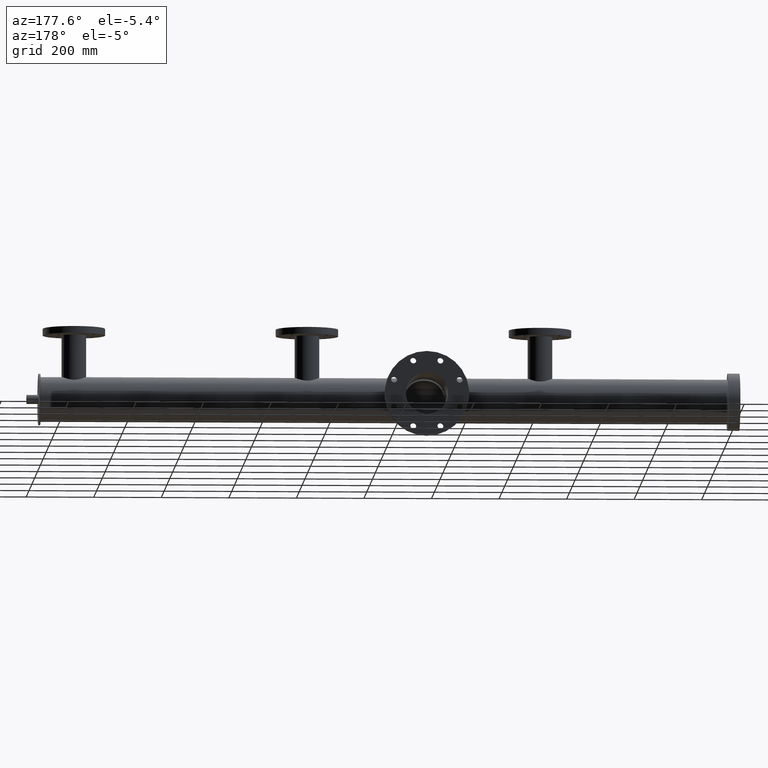
[diagram: clean part render]
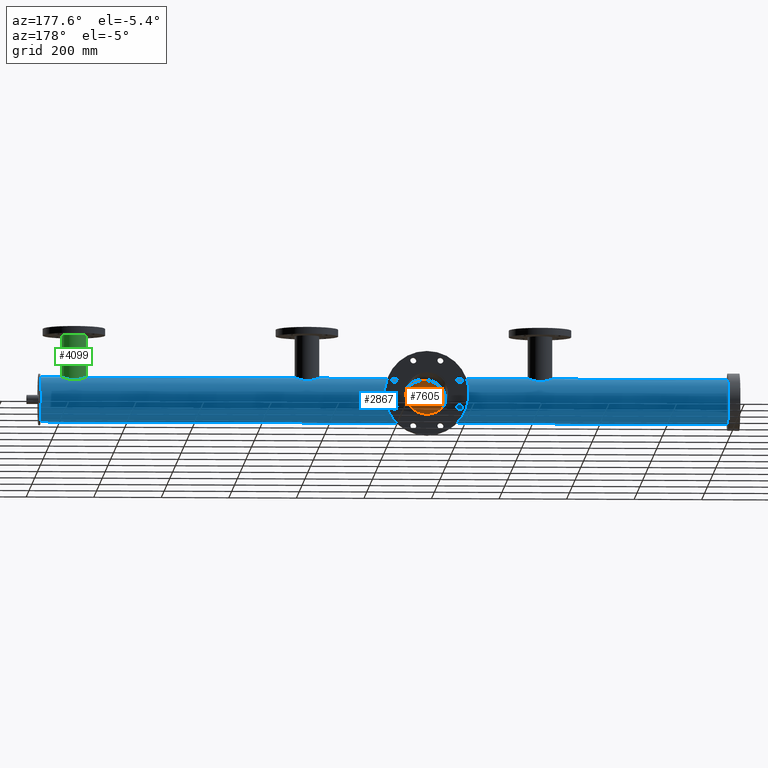
[diagram: same view with three faces highlighted in distinct colors, each labeled with its STEP entity id]
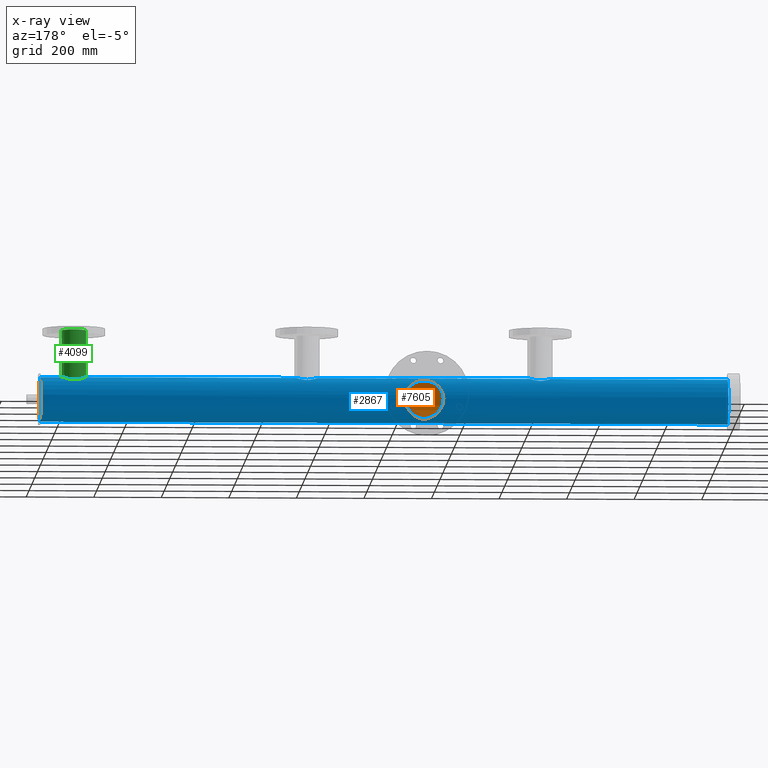
[diagram: x-ray of the same camera — body ghosted, the three highlighted faces saturated]
A machine part, auxiliary view with three faces highlighted in distinct colors.
The next image is the same camera in x-ray (body ghosted, the three faces saturated) — at least one of them is partly hidden behind the body in this view.
Their STEP definitions:

[orange] entity #7605 — the highlighted cylindrical surface (edge-blend (fillet) strip) has radius 62.5 mm, axis along (1, 0, 0).
#19 = EDGE_CURVE ( 'NONE', #8995, #5398, #6142, .T. ) ;
#50 = CARTESIAN_POINT ( 'NONE',  ( 885.2138306547590219, -4.306475252169028600, 62.38798996626604776 ) ) ;
#66 = CARTESIAN_POINT ( 'NONE',  ( -453.9612054745854834, -31.36287132946357659, 54.06148359628907230 ) ) ;
#127 = EDGE_CURVE ( 'NONE', #3263, #3162, #7419, .T. ) ;
#160 = CARTESIAN_POINT ( 'NONE',  ( 260.0000000000001137, -2.190811627302561959, 62.50000000000014211 ) ) ;
#343 = CARTESIAN_POINT ( 'NONE',  ( 885.0000000000001137, 7.654042445753682027E-15, 62.50000000000033396 ) ) ;
#387 = CARTESIAN_POINT ( 'NONE',  ( -431.6005480031124080, -10.08789286871263613, 61.68271418385364058 ) ) ;
#433 = CARTESIAN_POINT ( 'NONE',  ( -442.6820241759636474, -25.76383390466985901, 56.94378317648970977 ) ) ;
#465 = CARTESIAN_POINT ( 'NONE',  ( 195.0000000000001137, -2.163219712878200696, 62.50000000000012790 ) ) ;
#479 = CARTESIAN_POINT ( 'NONE',  ( -429.9999999999997726, -2.190811627302561515, 62.49999999999991473 ) ) ;
#516 = CARTESIAN_POINT ( 'NONE',  ( 246.0419847569117735, -26.69682697842139518, 56.51225210019374146 ) ) ;
#532 = ORIENTED_EDGE ( 'NONE', *, *, #4947, .T. ) ;
#593 = EDGE_CURVE ( 'NONE', #5972, #6512, #5476, .T. ) ;
#601 = CARTESIAN_POINT ( 'NONE',  ( 901.1175626604309628, -28.14750481131546422, 55.81806421966042819 ) ) ;
#603 = CARTESIAN_POINT ( 'NONE',  ( 208.5011621769548071, -26.38935829923886089, 56.65927857498440545 ) ) ;
#618 = CARTESIAN_POINT ( 'NONE',  ( -488.2785087488651357, -19.90540249865480860, 59.27404491847699575 ) ) ;
#647 = CARTESIAN_POINT ( 'NONE',  ( 916.4496834800484066, -32.48762012100470287, 53.39293516187986199 ) ) ;
#667 = CARTESIAN_POINT ( 'NONE',  ( -465.1885720754531803, -32.39316593794840315, 53.45032073799993810 ) ) ;
#716 = CARTESIAN_POINT ( 'NONE',  ( -458.1622335834242676, -32.28075632330111944, 53.52053549012816802 ) ) ;
#769 = LINE ( 'NONE', #7121, #4169 ) ;
#792 = CARTESIAN_POINT ( 'NONE',  ( 936.4728915942117737, -26.39236040568912145, 56.65521063534007595 ) ) ;
#1051 = CARTESIAN_POINT ( 'NONE',  ( -1017.500000000000114, 0.000000000000000000, -2.513587555249943081E-13 ) ) ;
#1174 = CARTESIAN_POINT ( 'NONE',  ( -1017.500000000000114, 7.654042494670957804E-15, 62.49999999999975131 ) ) ;
#1187 = CARTESIAN_POINT ( 'NONE',  ( -438.1099442109377833, -21.50514126686029215, 58.68995285173828336 ) ) ;
#1217 = CARTESIAN_POINT ( 'NONE',  ( 195.7495396019902216, -6.960714278710821823, 62.11347092660893310 ) ) ;
#1256 = CARTESIAN_POINT ( 'NONE',  ( 948.2271719750833654, -10.60089525356660900, 61.59654013548369988 ) ) ;
#1307 = CARTESIAN_POINT ( 'NONE',  ( 197.1226793662677039, -11.60120150098883229, 61.42193527010434195 ) ) ;
#1353 = CARTESIAN_POINT ( 'NONE',  ( 229.7023262877666241, -32.49763208637406819, 53.38683279929917092 ) ) ;
#1394 = CARTESIAN_POINT ( 'NONE',  ( 929.1018723110380506, -30.37695783909543223, 54.62331736181884168 ) ) ;
#1407 = VERTEX_POINT ( 'NONE', #7736 ) ;
#1462 = CARTESIAN_POINT ( 'NONE',  ( -493.2410771585601879, -10.60131855025746184, 61.60307719532118398 ) ) ;
#1496 = CARTESIAN_POINT ( 'NONE',  ( 886.2846094140077184, -9.062965051906184399, 61.84158740849200342 ) ) ;
#1510 = CARTESIAN_POINT ( 'NONE',  ( -482.3479177939672695, -25.75672634558920748, 56.95059471048787714 ) ) ;
#1515 = EDGE_CURVE ( 'NONE', #3263, #8995, #4181, .T. ) ;
#1541 = CARTESIAN_POINT ( 'NONE',  ( 912.1214404072803745, -32.06983395765512768, 53.64547281927475808 ) ) ;
#1555 = CARTESIAN_POINT ( 'NONE',  ( -469.9837900976946798, -31.64484222014155179, 53.89726305609050172 ) ) ;
#1583 = DIRECTION ( 'NONE',  ( -1.000000000000000000, 0.000000000000000000, -3.061616997868382648E-16 ) ) ;
#1590 = CARTESIAN_POINT ( 'NONE',  ( 886.1384168795522100, -8.543746948647807926, 61.91555216073861345 ) ) ;
#1644 = ORIENTED_EDGE ( 'NONE', *, *, #7827, .F. ) ;
#1816 = CARTESIAN_POINT ( 'NONE',  ( 258.2271719750837065, -10.60089525356664097, 61.59654013548351514 ) ) ;
#1885 = DIRECTION ( 'NONE',  ( 1.000000000000000000, -0.000000000000000000, 3.061616997868382648E-16 ) ) ;
#1945 = DIRECTION ( 'NONE',  ( -1.000000000000000000, 0.000000000000000000, -3.061616997868382648E-16 ) ) ;
#1961 = CARTESIAN_POINT ( 'NONE',  ( 950.0000000000001137, 6.228687773603136635E-15, 62.50000000000034817 ) ) ;
#1964 = CARTESIAN_POINT ( 'NONE',  ( 251.1883545973245759, -22.27542571529042803, 58.40102793750208576 ) ) ;
#2012 = CARTESIAN_POINT ( 'NONE',  ( 225.3580688024861729, -32.43394451286972213, 53.42555783202906383 ) ) ;
#2031 = B_SPLINE_CURVE_WITH_KNOTS ( 'NONE', 3,
 ( #3962, #160, #3215, #5626, #8672, #6271, #1816, #9319, #3267, #6325, #4867, #7922, #2851, #2811, #5909, #8866, #1964, #6569, #4356, #5020, #8952, #5867, #516, #4303, #9618, #2103, #8073, #7415, #4262, #2764, #7362, #5157, #1353, #6669, #7318, #2012, #2712, #8906, #8210, #4401, #5773, #7457, #4214, #5827, #8818, #603, #2057, #3652, #3568, #6710, #9754, #5106, #8159, #1307, #2903, #5958, #9003, #5061, #1217, #7274, #465, #2152 ),
 .UNSPECIFIED., .F., .F.,
 ( 4, 2, 2, 2, 2, 2, 2, 2, 2, 2, 2, 2, 2, 2, 2, 2, 2, 2, 2, 2, 2, 2, 2, 2, 2, 2, 2, 2, 2, 2, 4 ),
 ( 2.041573307671301907E-18, 0.006471610599020963944, 0.009707415898531445916, 0.01132531854828666522, 0.01294322119804188452, 0.01941483179706263162, 0.02103273444681775031, 0.02265063709657286900, 0.02588644239608309944, 0.02912224769559322232, 0.03074015034534825427, 0.03235805299510328276, 0.03882966359412341750, 0.04206546889363348835, 0.04368337154338855499, 0.04530127419314363552, 0.05177288479216392986, 0.05339078744191899650, 0.05500869009167406315, 0.05824449539118430053, 0.06148030069069452402, 0.06471610599020474752, 0.07118771658922520840, 0.07442352188873543883, 0.07765932718824565539, 0.08413093778726607463, 0.09060254838628649388, 0.09383835368579669656, 0.09545625633555178402, 0.09707415898530687148, 0.1035457695843271936 ),
 .UNSPECIFIED. ) ;
#2053 = CARTESIAN_POINT ( 'NONE',  ( 942.8901176544736700, -20.29447969442126976, 59.11486285693712972 ) ) ;
#2057 = CARTESIAN_POINT ( 'NONE',  ( 207.6520822060327021, -25.75672634558916840, 56.95059471048808319 ) ) ;
#2103 = CARTESIAN_POINT ( 'NONE',  ( 239.1018723110381927, -30.37695783909548908, 54.62331736181863562 ) ) ;
#2118 = CARTESIAN_POINT ( 'NONE',  ( -436.7852965873257176, -19.88170087212152382, 59.25508797624168267 ) ) ;
#2147 = AXIS2_PLACEMENT_3D ( 'NONE', #6094, #1583, #3942 ) ;
#2150 = CARTESIAN_POINT ( 'NONE',  ( 915.3580688024860592, -32.43394451286967239, 53.42555783202929831 ) ) ;
#2152 = CARTESIAN_POINT ( 'NONE',  ( 195.0000000000001137, 7.654042445753682027E-15, 62.50000000000012790 ) ) ;
#2190 = CARTESIAN_POINT ( 'NONE',  ( -429.9999999999997726, 7.098512232065295281E-16, 62.49999999999992895 ) ) ;
#2194 = CARTESIAN_POINT ( 'NONE',  ( 891.7214912511349212, -19.90540249865474109, 59.27404491847744339 ) ) ;
#2210 = CARTESIAN_POINT ( 'NONE',  ( -466.8116250574593664, -32.23107765057438456, 53.54832938007289300 ) ) ;
#2244 = CARTESIAN_POINT ( 'NONE',  ( 921.8377664165755050, -32.28075632330109102, 53.52053549012864408 ) ) ;
#2265 = CARTESIAN_POINT ( 'NONE',  ( -494.2504603980099205, -6.960714278710831593, 62.11347092660874125 ) ) ;
#2303 = CARTESIAN_POINT ( 'NONE',  ( 941.8900557890621030, -21.50514126686018201, 58.68995285173875942 ) ) ;
#2352 = CARTESIAN_POINT ( 'NONE',  ( 936.0419847569120293, -26.69682697842132413, 56.51225210019398304 ) ) ;
#2669 = DIRECTION ( 'NONE',  ( 1.000000000000000000, -0.000000000000000000, 3.061616997868382648E-16 ) ) ;
#2712 = CARTESIAN_POINT ( 'NONE',  ( 224.8114279245466207, -32.39316593794839605, 53.45032073800013706 ) ) ;
#2728 = CARTESIAN_POINT ( 'NONE',  ( -443.9580152430881981, -26.69682697842142360, 56.51225210019351408 ) ) ;
#2760 = CARTESIAN_POINT ( 'NONE',  ( 945.6299575046479049, -16.41407333610244379, 60.33392423520815839 ) ) ;
#2764 = CARTESIAN_POINT ( 'NONE',  ( 234.9937613121611548, -31.62885156581083379, 53.90630255627116441 ) ) ;
#2811 = CARTESIAN_POINT ( 'NONE',  ( 253.2147034126741119, -19.88170087212152382, 59.25508797624186741 ) ) ;
#2823 = CARTESIAN_POINT ( 'NONE',  ( -432.3346064786675242, -12.10711494641298636, 61.31817517448020993 ) ) ;
#2851 = CARTESIAN_POINT ( 'NONE',  ( 253.8460959114429727, -19.03710144416321626, 59.53180871807376207 ) ) ;
#2903 = CARTESIAN_POINT ( 'NONE',  ( 196.7589228414397837, -10.60131855025745473, 61.60307719532140425 ) ) ;
#2950 = CARTESIAN_POINT ( 'NONE',  ( 895.2615947113897619, -23.72312988892883467, 57.82810129361796925 ) ) ;
#2965 = CARTESIAN_POINT ( 'NONE',  ( -446.1384980908882767, -28.15960877461090561, 55.81191417687190182 ) ) ;
#2997 = CARTESIAN_POINT ( 'NONE',  ( 897.6520822060330147, -25.75672634558911156, 56.95059471048833188 ) ) ;
#3011 = CARTESIAN_POINT ( 'NONE',  ( -474.0860792773780759, -30.38334746836497757, 54.61980082520940272 ) ) ;
#3101 = CARTESIAN_POINT ( 'NONE',  ( 926.5609772880031869, -31.21598792083641172, 54.14651818578845166 ) ) ;
#3116 = CARTESIAN_POINT ( 'NONE',  ( -494.9999999999998295, 7.654042445753682027E-15, 62.49999999999991473 ) ) ;
#3162 = VERTEX_POINT ( 'NONE', #1174 ) ;
#3215 = CARTESIAN_POINT ( 'NONE',  ( 259.7808043167470373, -4.337780359266535157, 62.38522656098504626 ) ) ;
#3263 = VERTEX_POINT ( 'NONE', #4591 ) ;
#3267 = CARTESIAN_POINT ( 'NONE',  ( 257.6653935213323621, -12.10711494641298813, 61.31817517448043731 ) ) ;
#3281 = CARTESIAN_POINT ( 'NONE',  ( 195.0000000000001137, 7.654042445753682027E-15, 62.50000000000012790 ) ) ;
#3435 = ORIENTED_EDGE ( 'NONE', *, *, #6860, .T. ) ;
#3510 = CARTESIAN_POINT ( 'NONE',  ( 948.3994519968874783, -10.08789286871262014, 61.68271418385406690 ) ) ;
#3568 = CARTESIAN_POINT ( 'NONE',  ( 205.2615947113897050, -23.72312988892889152, 57.82810129361772766 ) ) ;
#3650 = CARTESIAN_POINT ( 'NONE',  ( 937.7311114170755673, -25.44062944401144932, 57.08901687334159902 ) ) ;
#3652 = CARTESIAN_POINT ( 'NONE',  ( 206.0335802533607250, -24.42420144157724593, 57.53466410661572894 ) ) ;
#3697 = CARTESIAN_POINT ( 'NONE',  ( 908.9779157336644175, -31.38108609192109810, 54.05191066083635576 ) ) ;
#3716 = CARTESIAN_POINT ( 'NONE',  ( -478.8824373395690372, -28.14750481131549620, 55.81806421965998766 ) ) ;
#3749 = CARTESIAN_POINT ( 'NONE',  ( 889.3511751803951029, -16.38292474572104496, 60.34266505887170240 ) ) ;
#3763 = CARTESIAN_POINT ( 'NONE',  ( -467.8785595927194549, -32.06983395765519163, 53.64547281927428912 ) ) ;
#3809 = CARTESIAN_POINT ( 'NONE',  ( -464.6419311975137134, -32.43394451286972924, 53.42555783202883646 ) ) ;
#3897 = ORIENTED_EDGE ( 'NONE', *, *, #7847, .T. ) ;
#3941 = ORIENTED_EDGE ( 'NONE', *, *, #1515, .F. ) ;
#3942 = DIRECTION ( 'NONE',  ( 0.000000000000000000, 0.000000000000000000, 1.000000000000000000 ) ) ;
#3962 = CARTESIAN_POINT ( 'NONE',  ( 260.0000000000001705, 2.105682110938275446E-15, 62.50000000000014211 ) ) ;
#3985 = LINE ( 'NONE', #7002, #7249 ) ;
#4010 = ORIENTED_EDGE ( 'NONE', *, *, #593, .F. ) ;
#4060 = CARTESIAN_POINT ( 'NONE',  ( -494.9999999999998295, 7.654042445753682027E-15, 62.49999999999991473 ) ) ;
#4108 = FACE_OUTER_BOUND ( 'NONE', #4949, .T. ) ;
#4125 = CARTESIAN_POINT ( 'NONE',  ( -1017.500000000000114, 0.000000000000000000, -62.50000000000024869 ) ) ;
#4169 = VECTOR ( 'NONE', #7522, 1000.000000000000000 ) ;
#4181 = LINE ( 'NONE', #4125, #8476 ) ;
#4214 = CARTESIAN_POINT ( 'NONE',  ( 215.9139207226219526, -30.38334746836496691, 54.61980082520965141 ) ) ;
#4233 = CARTESIAN_POINT ( 'NONE',  ( -438.8116454026753672, -22.27542571529042448, 58.40102793750186549 ) ) ;
#4258 = CARTESIAN_POINT ( 'NONE',  ( 949.1417879868790806, -7.496760596332674886, 62.05778990939800366 ) ) ;
#4262 = CARTESIAN_POINT ( 'NONE',  ( 236.0387945254144597, -31.36287132946358724, 54.06148359628927835 ) ) ;
#4263 = CARTESIAN_POINT ( 'NONE',  ( 1017.500000000000114, 7.654042494670995669E-15, 62.50000000000037659 ) ) ;
#4303 = CARTESIAN_POINT ( 'NONE',  ( 243.8615019091117802, -28.15960877461090206, 55.81191417687215761 ) ) ;
#4356 = CARTESIAN_POINT ( 'NONE',  ( 248.9432026911856042, -24.44448897103925944, 57.52601894128713411 ) ) ;
#4401 = CARTESIAN_POINT ( 'NONE',  ( 220.0162099023051780, -31.64484222014154469, 53.89726305609071488 ) ) ;
#4440 = CARTESIAN_POINT ( 'NONE',  ( 938.9432026911855473, -24.44448897103922036, 57.52601894128736149 ) ) ;
#4454 = CARTESIAN_POINT ( 'NONE',  ( -463.5503165199513091, -32.48762012100475260, 53.39293516187940014 ) ) ;
#4493 = CARTESIAN_POINT ( 'NONE',  ( 913.1883749425400083, -32.23107765057431351, 53.54832938007338328 ) ) ;
#4512 = CARTESIAN_POINT ( 'NONE',  ( -494.9999999999998863, -2.163219712878205581, 62.49999999999991473 ) ) ;
#4546 = CARTESIAN_POINT ( 'NONE',  ( 905.9139207226218105, -30.38334746836488520, 54.61980082520987878 ) ) ;
#4560 = CARTESIAN_POINT ( 'NONE',  ( -491.6489821982734725, -14.52806860560703583, 60.82066471978453137 ) ) ;
#4591 = CARTESIAN_POINT ( 'NONE',  ( -1017.500000000000114, 0.000000000000000000, -62.50000000000024869 ) ) ;
#4666 = ORIENTED_EDGE ( 'NONE', *, *, #19, .F. ) ;
#4743 = DIRECTION ( 'NONE',  ( 1.000000000000000000, -0.000000000000000000, 3.061616997868382648E-16 ) ) ;
#4867 = CARTESIAN_POINT ( 'NONE',  ( 255.6299575046480186, -16.41407333610246866, 60.33392423520795944 ) ) ;
#4947 = EDGE_CURVE ( 'NONE', #3162, #6512, #3985, .T. ) ;
#4949 = EDGE_LOOP ( 'NONE', ( #6511, #532, #4010, #8062, #1644, #3897, #8528, #3435, #4666, #3941 ) ) ;
#5015 = CARTESIAN_POINT ( 'NONE',  ( 950.0000000000001137, -2.190811627302556186, 62.50000000000034817 ) ) ;
#5020 = CARTESIAN_POINT ( 'NONE',  ( 247.7311114170757662, -25.44062944401148130, 57.08901687334135033 ) ) ;
#5061 = CARTESIAN_POINT ( 'NONE',  ( 195.8706529276124968, -7.491923085413409567, 62.05160996923364536 ) ) ;
#5085 = CARTESIAN_POINT ( 'NONE',  ( -1017.500000000000114, 7.654042494670957804E-15, 62.49999999999975131 ) ) ;
#5106 = CARTESIAN_POINT ( 'NONE',  ( 199.3511751803949892, -16.38292474572113022, 60.34266505887146081 ) ) ;
#5157 = CARTESIAN_POINT ( 'NONE',  ( 231.8377664165754766, -32.28075632330114075, 53.52053549012837408 ) ) ;
#5203 = CARTESIAN_POINT ( 'NONE',  ( 924.4693442296586454, -31.74848943495723574, 53.83584983861219087 ) ) ;
#5249 = CARTESIAN_POINT ( 'NONE',  ( 887.1226793662679029, -11.60120150098879321, 61.42193527010459775 ) ) ;
#5265 = CARTESIAN_POINT ( 'NONE',  ( -490.6488248196048403, -16.38292474572109469, 60.34266505887124765 ) ) ;
#5292 = VERTEX_POINT ( 'NONE', #343 ) ;
#5303 = CARTESIAN_POINT ( 'NONE',  ( 885.0000000000001137, 7.654042445753682027E-15, 62.50000000000033396 ) ) ;
#5370 = CARTESIAN_POINT ( 'NONE',  ( -486.9471837354183208, -21.51556305181531314, 58.70123772435215415 ) ) ;
#5398 = VERTEX_POINT ( 'NONE', #4263 ) ;
#5404 = CARTESIAN_POINT ( 'NONE',  ( 926.0387945254144597, -31.36287132946352685, 54.06148359628952704 ) ) ;
#5420 = CARTESIAN_POINT ( 'NONE',  ( -477.0335460563217111, -29.14731865282190881, 55.29525836477006351 ) ) ;
#5460 = VERTEX_POINT ( 'NONE', #5828 ) ;
#5476 = B_SPLINE_CURVE_WITH_KNOTS ( 'NONE', 3,
 ( #5880, #479, #7243, #6639, #7381, #387, #9679, #9636, #2823, #5922, #9721, #5841, #8881, #2118, #8921, #1187, #4233, #6495, #9540, #7290, #433, #9584, #2728, #2965, #9867, #7613, #6020, #6169, #66, #9111, #6825, #716, #9064, #9168, #4454, #3809, #667, #2210, #3763, #1555, #7658, #5973, #3011, #5420, #3716, #8462, #1510, #8413, #7563, #5370, #618, #5265, #4560, #7470, #1462, #8310, #6782, #9824, #2265, #6062, #4512, #3116 ),
 .UNSPECIFIED., .F., .F.,
 ( 4, 2, 2, 2, 2, 2, 2, 2, 2, 2, 2, 2, 2, 2, 2, 2, 2, 2, 2, 2, 2, 2, 2, 2, 2, 2, 2, 2, 2, 2, 4 ),
 ( 6.882393606271916425E-19, 0.006471610599021243235, 0.009707415898531862250, 0.01132531854828714747, 0.01294322119804243269, 0.01941483179706344001, 0.02103273444681862114, 0.02265063709657380228, 0.02588644239608416456, 0.02912224769559453030, 0.03074015034534964899, 0.03235805299510477462, 0.03882966359412502733, 0.04206546889363515368, 0.04368337154339021339, 0.04530127419314528003, 0.05177288479216551886, 0.05339078744192066878, 0.05500869009167581175, 0.05824449539118594504, 0.06148030069069606446, 0.06471610599020620469, 0.07118771658922629086, 0.07442352188873632701, 0.07765932718824639092, 0.08413093778726657423, 0.09060254838628677143, 0.09383835368579683534, 0.09545625633555190892, 0.09707415898530695475, 0.1035457695843271797 ),
 .UNSPECIFIED. ) ;
#5626 = CARTESIAN_POINT ( 'NONE',  ( 259.1417879868793079, -7.496760596332687321, 62.05778990939779760 ) ) ;
#5681 = CARTESIAN_POINT ( 'NONE',  ( -1017.500000000000114, 0.000000000000000000, -2.513587555249943081E-13 ) ) ;
#5773 = CARTESIAN_POINT ( 'NONE',  ( 218.9779157336644744, -31.38108609192114784, 54.05191066083609996 ) ) ;
#5827 = CARTESIAN_POINT ( 'NONE',  ( 212.9664539436782604, -29.14731865282189460, 55.29525836477030509 ) ) ;
#5828 = CARTESIAN_POINT ( 'NONE',  ( 950.0000000000001137, 6.228687773603136635E-15, 62.50000000000034817 ) ) ;
#5841 = CARTESIAN_POINT ( 'NONE',  ( -435.8466713897769296, -18.60454832934667380, 59.66850442260068377 ) ) ;
#5865 = CARTESIAN_POINT ( 'NONE',  ( 943.8460959114429443, -19.03710144416317362, 59.53180871807398944 ) ) ;
#5867 = CARTESIAN_POINT ( 'NONE',  ( 246.4728915942118022, -26.39236040568918185, 56.65521063533982726 ) ) ;
#5880 = CARTESIAN_POINT ( 'NONE',  ( -429.9999999999997726, 7.098512232065295281E-16, 62.49999999999992895 ) ) ;
#5909 = CARTESIAN_POINT ( 'NONE',  ( 252.8901176544737268, -20.29447969442137989, 59.11486285693690235 ) ) ;
#5922 = CARTESIAN_POINT ( 'NONE',  ( -433.3659956642708266, -14.55990966062509884, 60.81342331703525872 ) ) ;
#5956 = CARTESIAN_POINT ( 'NONE',  ( 885.8706529276121273, -7.491923085413410455, 62.05160996923384431 ) ) ;
#5958 = CARTESIAN_POINT ( 'NONE',  ( 196.2846094140075479, -9.062965051906180847, 61.84158740849179736 ) ) ;
#5972 = VERTEX_POINT ( 'NONE', #2190 ) ;
#5973 = CARTESIAN_POINT ( 'NONE',  ( -473.0708800603787267, -30.75150369169248776, 54.41255949774255640 ) ) ;
#5983 = LINE ( 'NONE', #5085, #8044 ) ;
#6003 = CARTESIAN_POINT ( 'NONE',  ( 939.7149257300557110, -23.74510073960746581, 57.81906991486663827 ) ) ;
#6020 = CARTESIAN_POINT ( 'NONE',  ( -451.8972771349581308, -30.74067522025481125, 54.41869367297917393 ) ) ;
#6047 = CARTESIAN_POINT ( 'NONE',  ( 885.0000000000001137, -2.163219712878198475, 62.50000000000033396 ) ) ;
#6062 = CARTESIAN_POINT ( 'NONE',  ( -494.7861693452413192, -4.306475252169063239, 62.38798996626565696 ) ) ;
#6094 = CARTESIAN_POINT ( 'NONE',  ( 1017.500000000000114, 0.000000000000000000, 3.716803035412216038E-13 ) ) ;
#6142 = CIRCLE ( 'NONE', #2147, 62.50000000000000000 ) ;
#6155 = CARTESIAN_POINT ( 'NONE',  ( 933.8615019091116665, -28.15960877461082035, 55.81191417687237788 ) ) ;
#6169 = CARTESIAN_POINT ( 'NONE',  ( -453.4390227119965289, -31.21598792083643303, 54.14651818578801823 ) ) ;
#6271 = CARTESIAN_POINT ( 'NONE',  ( 258.3994519968875920, -10.08789286871263791, 61.68271418385384663 ) ) ;
#6325 = CARTESIAN_POINT ( 'NONE',  ( 256.6340043357291734, -14.55990966062510239, 60.81342331703550030 ) ) ;
#6486 = B_SPLINE_CURVE_WITH_KNOTS ( 'NONE', 3,
 ( #1961, #5015, #8070, #4258, #7315, #3510, #1256, #6565, #8862, #9614, #2760, #9665, #5865, #8904, #2053, #2303, #9199, #6003, #4440, #3650, #8249, #792, #2352, #6155, #7687, #1394, #7496, #3101, #5404, #9000, #5203, #2244, #6812, #6708, #647, #2150, #9853, #4493, #1541, #6910, #3697, #6766, #4546, #9093, #601, #7599, #2997, #9807, #2950, #9048, #2194, #3749, #8445, #5249, #8294, #1496, #1590, #5956, #9749, #50, #6047, #5303 ),
 .UNSPECIFIED., .F., .F.,
 ( 4, 2, 2, 2, 2, 2, 2, 2, 2, 2, 2, 2, 2, 2, 2, 2, 2, 2, 2, 2, 2, 2, 2, 2, 2, 2, 2, 2, 2, 2, 4 ),
 ( 6.039051495166323637E-18, 0.006471610599020772257, 0.009707415898531187443, 0.01132531854828634776, 0.01294322119804150462, 0.01941483179706200712, 0.02103273444681713275, 0.02265063709657225838, 0.02588644239608251657, 0.02912224769559277129, 0.03074015034534790039, 0.03235805299510302602, 0.03882966359412272361, 0.04206546889363242669, 0.04368337154338742395, 0.04530127419314242815, 0.05177288479216309025, 0.05339078744191833037, 0.05500869009167357743, 0.05824449539118373848, 0.06148030069069390646, 0.06471610599020406751, 0.07118771658922440349, 0.07442352188873468943, 0.07765932718824497538, 0.08413093778726557503, 0.09060254838628616081, 0.09383835368579640512, 0.09545625633555152034, 0.09707415898530662168, 0.1035457695843270687 ),
 .UNSPECIFIED. ) ;
#6495 = CARTESIAN_POINT ( 'NONE',  ( -440.2850742699441184, -23.74510073960752621, 57.81906991486620484 ) ) ;
#6511 = ORIENTED_EDGE ( 'NONE', *, *, #127, .T. ) ;
#6512 = VERTEX_POINT ( 'NONE', #4060 ) ;
#6565 = CARTESIAN_POINT ( 'NONE',  ( 947.8603693128354735, -11.60973957294918968, 61.41438499152823027 ) ) ;
#6569 = CARTESIAN_POINT ( 'NONE',  ( 249.7149257300559100, -23.74510073960752621, 57.81906991486640379 ) ) ;
#6628 = LINE ( 'NONE', #9667, #8526 ) ;
#6639 = CARTESIAN_POINT ( 'NONE',  ( -430.8582120131205784, -7.496760596332683768, 62.05778990939757733 ) ) ;
#6669 = CARTESIAN_POINT ( 'NONE',  ( 226.9934500268248883, -32.50056811647101540, 53.38504540205284599 ) ) ;
#6708 = CARTESIAN_POINT ( 'NONE',  ( 916.9934500268250304, -32.50056811647095856, 53.38504540205311599 ) ) ;
#6710 = CARTESIAN_POINT ( 'NONE',  ( 203.0528162645814234, -21.51556305181531314, 58.70123772435238152 ) ) ;
#6766 = CARTESIAN_POINT ( 'NONE',  ( 906.9291199396211596, -30.75150369169242737, 54.41255949774302536 ) ) ;
#6782 = CARTESIAN_POINT ( 'NONE',  ( -493.8615831204479036, -8.543746948647841677, 61.91555216073817292 ) ) ;
#6812 = CARTESIAN_POINT ( 'NONE',  ( 919.7023262877664820, -32.49763208637400425, 53.38683279929941961 ) ) ;
#6825 = CARTESIAN_POINT ( 'NONE',  ( -455.5306557703410704, -31.74848943495726772, 53.83584983861173612 ) ) ;
#6860 = EDGE_CURVE ( 'NONE', #5460, #5398, #5983, .T. ) ;
#6910 = CARTESIAN_POINT ( 'NONE',  ( 910.0162099023050359, -31.64484222014147363, 53.89726305609094936 ) ) ;
#7002 = CARTESIAN_POINT ( 'NONE',  ( -1017.500000000000114, 7.654042494670957804E-15, 62.49999999999975131 ) ) ;
#7121 = CARTESIAN_POINT ( 'NONE',  ( -1017.500000000000114, 7.654042494670957804E-15, 62.49999999999975131 ) ) ;
#7243 = CARTESIAN_POINT ( 'NONE',  ( -430.2191956832528490, -4.337780359266531605, 62.38522656098483310 ) ) ;
#7249 = VECTOR ( 'NONE', #4743, 1000.000000000000000 ) ;
#7260 = AXIS2_PLACEMENT_3D ( 'NONE', #5681, #2669, #9373 ) ;
#7274 = CARTESIAN_POINT ( 'NONE',  ( 195.2138306547589366, -4.306475252169052581, 62.38798996626584170 ) ) ;
#7290 = CARTESIAN_POINT ( 'NONE',  ( -442.2688885829240917, -25.44062944401143511, 57.08901687334115138 ) ) ;
#7308 = VERTEX_POINT ( 'NONE', #3281 ) ;
#7315 = CARTESIAN_POINT ( 'NONE',  ( 948.8766615433092966, -8.539436477361729061, 61.92268785444953494 ) ) ;
#7318 = CARTESIAN_POINT ( 'NONE',  ( 226.4496834800485772, -32.48762012100474550, 53.39293516187959909 ) ) ;
#7362 = CARTESIAN_POINT ( 'NONE',  ( 234.4693442296588728, -31.74848943495728193, 53.83584983861193507 ) ) ;
#7381 = CARTESIAN_POINT ( 'NONE',  ( -431.1233384566906466, -8.539436477361746824, 61.92268785444912282 ) ) ;
#7415 = CARTESIAN_POINT ( 'NONE',  ( 236.5609772880034996, -31.21598792083644369, 54.14651818578821718 ) ) ;
#7419 = CIRCLE ( 'NONE', #8707, 62.50000000000000000 ) ;
#7442 = DIRECTION ( 'NONE',  ( 0.000000000000000000, 0.000000000000000000, 1.000000000000000000 ) ) ;
#7457 = CARTESIAN_POINT ( 'NONE',  ( 216.9291199396211880, -30.75150369169247000, 54.41255949774278378 ) ) ;
#7470 = CARTESIAN_POINT ( 'NONE',  ( -492.8773206337320971, -11.60120150098883940, 61.42193527010413590 ) ) ;
#7496 = CARTESIAN_POINT ( 'NONE',  ( 928.1027228650416419, -30.74067522025478638, 54.41869367297959315 ) ) ;
#7522 = DIRECTION ( 'NONE',  ( 1.000000000000000000, -0.000000000000000000, 3.061616997868382648E-16 ) ) ;
#7563 = CARTESIAN_POINT ( 'NONE',  ( -484.7384052886103518, -23.72312988892889507, 57.82810129361751450 ) ) ;
#7599 = CARTESIAN_POINT ( 'NONE',  ( 898.5011621769546082, -26.38935829923883603, 56.65927857498465414 ) ) ;
#7605 = ADVANCED_FACE ( 'NONE', ( #4108 ), #8724, .F. ) ;
#7613 = CARTESIAN_POINT ( 'NONE',  ( -450.8981276889617789, -30.37695783909550684, 54.62331736181842956 ) ) ;
#7658 = CARTESIAN_POINT ( 'NONE',  ( -471.0220842663354119, -31.38108609192116916, 54.05191066083587259 ) ) ;
#7687 = CARTESIAN_POINT ( 'NONE',  ( 932.0203477431535930, -29.15238474185534301, 55.29244010292353551 ) ) ;
#7736 = CARTESIAN_POINT ( 'NONE',  ( 260.0000000000001705, 2.105682110938275446E-15, 62.50000000000014211 ) ) ;
#7827 = EDGE_CURVE ( 'NONE', #1407, #7308, #2031, .T. ) ;
#7847 = EDGE_CURVE ( 'NONE', #1407, #5292, #6628, .T. ) ;
#7922 = CARTESIAN_POINT ( 'NONE',  ( 254.1533286102229852, -18.60454832934667024, 59.66850442260089693 ) ) ;
#8044 = VECTOR ( 'NONE', #9027, 1000.000000000000000 ) ;
#8062 = ORIENTED_EDGE ( 'NONE', *, *, #8302, .T. ) ;
#8070 = CARTESIAN_POINT ( 'NONE',  ( 949.7808043167469805, -4.337780359266527164, 62.38522656098525232 ) ) ;
#8073 = CARTESIAN_POINT ( 'NONE',  ( 238.1027228650420113, -30.74067522025482191, 54.41869367297937998 ) ) ;
#8159 = CARTESIAN_POINT ( 'NONE',  ( 198.3510178017264138, -14.52806860560702695, 60.82066471978475164 ) ) ;
#8210 = CARTESIAN_POINT ( 'NONE',  ( 222.1214404072804030, -32.06983395765517741, 53.64547281927447386 ) ) ;
#8249 = CARTESIAN_POINT ( 'NONE',  ( 937.3179758240363526, -25.76383390466981638, 56.94378317649015031 ) ) ;
#8294 = CARTESIAN_POINT ( 'NONE',  ( 886.7589228414399258, -10.60131855025744940, 61.60307719532160320 ) ) ;
#8302 = EDGE_CURVE ( 'NONE', #5972, #7308, #769, .T. ) ;
#8310 = CARTESIAN_POINT ( 'NONE',  ( -493.7153905859923952, -9.062965051906182623, 61.84158740849156999 ) ) ;
#8387 = CARTESIAN_POINT ( 'NONE',  ( 1017.500000000000114, 0.000000000000000000, -62.49999999999962341 ) ) ;
#8413 = CARTESIAN_POINT ( 'NONE',  ( -483.9664197466391897, -24.42420144157728146, 57.53466410661552288 ) ) ;
#8445 = CARTESIAN_POINT ( 'NONE',  ( 888.3510178017265844, -14.52806860560696123, 60.82066471978498612 ) ) ;
#8462 = CARTESIAN_POINT ( 'NONE',  ( -481.4988378230452781, -26.38935829923887511, 56.65927857498422782 ) ) ;
#8476 = VECTOR ( 'NONE', #1885, 1000.000000000000000 ) ;
#8526 = VECTOR ( 'NONE', #9568, 1000.000000000000000 ) ;
#8528 = ORIENTED_EDGE ( 'NONE', *, *, #9491, .F. ) ;
#8672 = CARTESIAN_POINT ( 'NONE',  ( 258.8766615433093534, -8.539436477361745048, 61.92268785444931467 ) ) ;
#8707 = AXIS2_PLACEMENT_3D ( 'NONE', #1051, #1945, #7442 ) ;
#8724 = CYLINDRICAL_SURFACE ( 'NONE', #7260, 62.50000000000000000 ) ;
#8818 = CARTESIAN_POINT ( 'NONE',  ( 211.1175626604309912, -28.14750481131549975, 55.81806421966020082 ) ) ;
#8862 = CARTESIAN_POINT ( 'NONE',  ( 947.6653935213324758, -12.10711494641293484, 61.31817517448066468 ) ) ;
#8866 = CARTESIAN_POINT ( 'NONE',  ( 251.8900557890621030, -21.50514126686028860, 58.68995285173848941 ) ) ;
#8881 = CARTESIAN_POINT ( 'NONE',  ( -436.1539040885569989, -19.03710144416321626, 59.53180871807354890 ) ) ;
#8904 = CARTESIAN_POINT ( 'NONE',  ( 943.2147034126736571, -19.88170087212148118, 59.25508797624210189 ) ) ;
#8906 = CARTESIAN_POINT ( 'NONE',  ( 223.1883749425403778, -32.23107765057437746, 53.54832938007311327 ) ) ;
#8921 = CARTESIAN_POINT ( 'NONE',  ( -437.1098823455261595, -20.29447969442137989, 59.11486285693668918 ) ) ;
#8952 = CARTESIAN_POINT ( 'NONE',  ( 247.3179758240362389, -25.76383390466986612, 56.94378317648990162 ) ) ;
#8995 = VERTEX_POINT ( 'NONE', #8387 ) ;
#9000 = CARTESIAN_POINT ( 'NONE',  ( 924.9937613121613822, -31.62885156581076629, 53.90630255627143441 ) ) ;
#9003 = CARTESIAN_POINT ( 'NONE',  ( 196.1384168795519827, -8.543746948647800821, 61.91555216073839318 ) ) ;
#9027 = DIRECTION ( 'NONE',  ( 1.000000000000000000, -0.000000000000000000, 3.061616997868382648E-16 ) ) ;
#9048 = CARTESIAN_POINT ( 'NONE',  ( 893.0528162645814518, -21.51556305181525985, 58.70123772435261600 ) ) ;
#9064 = CARTESIAN_POINT ( 'NONE',  ( -460.2976737122335749, -32.49763208637406819, 53.38683279929897907 ) ) ;
#9093 = CARTESIAN_POINT ( 'NONE',  ( 902.9664539436784025, -29.14731865282183776, 55.29525836477055378 ) ) ;
#9111 = CARTESIAN_POINT ( 'NONE',  ( -455.0062386878386747, -31.62885156581081603, 53.90630255627097256 ) ) ;
#9168 = CARTESIAN_POINT ( 'NONE',  ( -463.0065499731750265, -32.50056811647100830, 53.38504540205266125 ) ) ;
#9199 = CARTESIAN_POINT ( 'NONE',  ( 941.1883545973246328, -22.27542571529036763, 58.40102793750227761 ) ) ;
#9319 = CARTESIAN_POINT ( 'NONE',  ( 257.8603693128353029, -11.60973957294920744, 61.41438499152800290 ) ) ;
#9373 = DIRECTION ( 'NONE',  ( 0.000000000000000000, 0.000000000000000000, -1.000000000000000000 ) ) ;
#9491 = EDGE_CURVE ( 'NONE', #5460, #5292, #6486, .T. ) ;
#9540 = CARTESIAN_POINT ( 'NONE',  ( -441.0567973088145095, -24.44448897103922036, 57.52601894128694937 ) ) ;
#9568 = DIRECTION ( 'NONE',  ( 1.000000000000000000, -0.000000000000000000, 3.061616997868382648E-16 ) ) ;
#9584 = CARTESIAN_POINT ( 'NONE',  ( -443.5271084057883400, -26.39236040568917829, 56.65521063533966384 ) ) ;
#9614 = CARTESIAN_POINT ( 'NONE',  ( 946.6340043357292870, -14.55990966062504199, 60.81342331703572057 ) ) ;
#9618 = CARTESIAN_POINT ( 'NONE',  ( 242.0203477431536498, -29.15238474185539275, 55.29244010292334366 ) ) ;
#9636 = CARTESIAN_POINT ( 'NONE',  ( -432.1396306871646402, -11.60973957294921100, 61.41438499152781105 ) ) ;
#9665 = CARTESIAN_POINT ( 'NONE',  ( 944.1533286102227294, -18.60454832934663827, 59.66850442260109588 ) ) ;
#9667 = CARTESIAN_POINT ( 'NONE',  ( -1017.500000000000114, 7.654042494670957804E-15, 62.49999999999975131 ) ) ;
#9679 = CARTESIAN_POINT ( 'NONE',  ( -431.7728280249162935, -10.60089525356663742, 61.59654013548329488 ) ) ;
#9721 = CARTESIAN_POINT ( 'NONE',  ( -434.3700424953518109, -16.41407333610245800, 60.33392423520771786 ) ) ;
#9749 = CARTESIAN_POINT ( 'NONE',  ( 885.7495396019900227, -6.960714278710799618, 62.11347092660912494 ) ) ;
#9754 = CARTESIAN_POINT ( 'NONE',  ( 201.7214912511348075, -19.90540249865483347, 59.27404491847721602 ) ) ;
#9807 = CARTESIAN_POINT ( 'NONE',  ( 896.0335802533606966, -24.42420144157717488, 57.53466410661597052 ) ) ;
#9824 = CARTESIAN_POINT ( 'NONE',  ( -494.1293470723875885, -7.491923085413449535, 62.05160996923346062 ) ) ;
#9853 = CARTESIAN_POINT ( 'NONE',  ( 914.8114279245467060, -32.39316593794834631, 53.45032073800041417 ) ) ;
#9867 = CARTESIAN_POINT ( 'NONE',  ( -447.9796522568464070, -29.15238474185541051, 55.29244010292310918 ) ) ;

[blue] entity #2867 — the highlighted cylindrical surface (edge-blend (fillet) strip) has radius 66.5 mm, axis along (1, 0, 0).
#30 = CARTESIAN_POINT ( 'NONE',  ( -98.29081968248362955, 38.52855690561203517, 54.20423158859926360 ) ) ;
#49 = CARTESIAN_POINT ( 'NONE',  ( -174.9974016969365209, 66.49775334742545851, 2.089299527428394310 ) ) ;
#83 = CARTESIAN_POINT ( 'NONE',  ( -93.24519194306395775, 41.26032754041804651, 52.16509487387987321 ) ) ;
#98 = CARTESIAN_POINT ( 'NONE',  ( -174.4488180986485304, 66.02394597559529643, -8.006477454805727589 ) ) ;
#146 = CARTESIAN_POINT ( 'NONE',  ( -168.4968322019782363, 60.96240569027268208, -26.62881726612987876 ) ) ;
#158 = CARTESIAN_POINT ( 'NONE',  ( -438.0503621738303650, 21.51473710875147916, 62.94339915931180940 ) ) ;
#178 = CARTESIAN_POINT ( 'NONE',  ( 201.7569246192732066, 19.86589681302385557, 63.46910552035645026 ) ) ;
#200 = CARTESIAN_POINT ( 'NONE',  ( -168.4299035462175311, 60.90813352816694248, 26.70765293836818799 ) ) ;
#237 = CARTESIAN_POINT ( 'NONE',  ( 210.2605142409437633, 27.55593899285991810, 60.52281115596054661 ) ) ;
#266 = CARTESIAN_POINT ( 'NONE',  ( -429.9999999999997726, -5.798802460949385252E-15, 66.49999999999992895 ) ) ;
#278 = CARTESIAN_POINT ( 'NONE',  ( 1017.500000000000114, 0.000000000000000000, -66.49999999999963052 ) ) ;
#286 = CARTESIAN_POINT ( 'NONE',  ( 887.9568516792348873, 13.55492810237355528, 65.10572528079120502 ) ) ;
#304 = CARTESIAN_POINT ( 'NONE',  ( -95.80211857648913565, 39.82871013095082446, -53.25657599097844752 ) ) ;
#312 = CARTESIAN_POINT ( 'NONE',  ( -448.9953615644051297, 29.58051351557128683, 59.56050877252960163 ) ) ;
#314 = CARTESIAN_POINT ( 'NONE',  ( -494.9999999999998295, 8.143900279030611837E-15, 66.49999999999991473 ) ) ;
#331 = CARTESIAN_POINT ( 'NONE',  ( 197.9568516792351147, 13.55492810237361390, 65.10572528079100607 ) ) ;
#359 = CARTESIAN_POINT ( 'NONE',  ( -115.4800309615683034, 33.40658617698009891, -57.50000000000001421 ) ) ;
#389 = AXIS2_PLACEMENT_3D ( 'NONE', #5263, #4510, #5473 ) ;
#427 = ORIENTED_EDGE ( 'NONE', *, *, #7569, .F. ) ;
#435 = CARTESIAN_POINT ( 'NONE',  ( 253.2768557845275268, 19.90478063497550565, 63.47689682624488228 ) ) ;
#437 = CARTESIAN_POINT ( 'NONE',  ( 891.7569246192734909, 19.86589681302382715, 63.46910552035667052 ) ) ;
#481 = CARTESIAN_POINT ( 'NONE',  ( 259.7806883866884391, 3.808439228192663339, 66.39307609699726243 ) ) ;
#483 = CARTESIAN_POINT ( 'NONE',  ( 931.0046384355945293, 29.58051351557121933, 59.56050877253002085 ) ) ;
#495 = EDGE_CURVE ( 'NONE', #3914, #6256, #5278, .T. ) ;
#535 = CARTESIAN_POINT ( 'NONE',  ( 259.5490491301319480, 5.422394919364600163, 66.28073977785105342 ) ) ;
#538 = CARTESIAN_POINT ( 'NONE',  ( 903.9789031247875073, 29.57264475632636902, 59.56439064619338808 ) ) ;
#552 = CARTESIAN_POINT ( 'NONE',  ( -61.39109482644431637, 65.30089090449406797, -12.58136942098588484 ) ) ;
#560 = CARTESIAN_POINT ( 'NONE',  ( -124.5453447696370120, 34.12751950872856099, 57.07542899710124829 ) ) ;
#577 = CARTESIAN_POINT ( 'NONE',  ( 885.0000000000001137, 8.143900279030611837E-15, 66.50000000000034106 ) ) ;
#578 = CARTESIAN_POINT ( 'NONE',  ( 250.0901214892028293, 23.37119124095217870, 62.25908775544785101 ) ) ;
#580 = CARTESIAN_POINT ( 'NONE',  ( 896.0306235981239524, 24.48859135648639196, 61.84688741834253278 ) ) ;
#597 = VERTEX_POINT ( 'NONE', #762 ) ;
#633 = CARTESIAN_POINT ( 'NONE',  ( -80.01835651057601240, 50.19958843683968297, -43.64066768047582201 ) ) ;
#646 = CARTESIAN_POINT ( 'NONE',  ( -128.9164175847704428, 35.30062463239814008, 56.35735443686633772 ) ) ;
#685 = CARTESIAN_POINT ( 'NONE',  ( -60.54700691332260476, 66.02750672273833743, -8.162470181894089905 ) ) ;
#710 = VERTEX_POINT ( 'NONE', #9321 ) ;
#746 = CARTESIAN_POINT ( 'NONE',  ( -171.5821489443254677, 63.56764164673408857, -19.55319150979108400 ) ) ;
#759 = CARTESIAN_POINT ( 'NONE',  ( -494.5544016256181408, 5.390526019480214259, 66.28332873402345626 ) ) ;
#762 = CARTESIAN_POINT ( 'NONE',  ( -117.4999999999998153, 33.40658617698009891, -57.49999999999999289 ) ) ;
#777 = CARTESIAN_POINT ( 'NONE',  ( -67.87048058835121367, 59.82493796678978271, 29.05254098491845838 ) ) ;
#791 = CARTESIAN_POINT ( 'NONE',  ( -165.6601314293756957, 58.60906509035873313, -31.46846149399308601 ) ) ;
#809 = CARTESIAN_POINT ( 'NONE',  ( -476.0210968752127769, 29.57264475632644718, 59.56439064619290491 ) ) ;
#834 = CARTESIAN_POINT ( 'NONE',  ( -110.9029771500220676, 34.04815790236840201, 57.12253422289836635 ) ) ;
#855 = CARTESIAN_POINT ( 'NONE',  ( -162.4043939043690727, 55.96690897527469133, -35.92603578368594697 ) ) ;
#859 = ORIENTED_EDGE ( 'NONE', *, *, #9782, .T. ) ;
#889 = CARTESIAN_POINT ( 'NONE',  ( -61.45417141349607704, 65.24663806981463665, 12.88832475197818361 ) ) ;
#904 = CARTESIAN_POINT ( 'NONE',  ( -166.6013496864432284, 59.38585736176565888, 29.98012365399477730 ) ) ;
#935 = CARTESIAN_POINT ( 'NONE',  ( 201.1290643354264773, 19.02434105386635110, 63.72710191467125185 ) ) ;
#949 = CARTESIAN_POINT ( 'NONE',  ( -173.9488014620418426, 65.59310891924663167, -10.98993791860400826 ) ) ;
#962 = CARTESIAN_POINT ( 'NONE',  ( -431.7092647379783443, 10.61589790601261107, 65.67751181466950072 ) ) ;
#985 = CARTESIAN_POINT ( 'NONE',  ( 213.9789031247872515, 29.57264475632644718, 59.56439064619311807 ) ) ;
#1019 = CARTESIAN_POINT ( 'NONE',  ( -441.0732429660595244, 24.44220117717945229, 61.84636237476907183 ) ) ;
#1043 = CARTESIAN_POINT ( 'NONE',  ( 885.5394012545725673, 5.921028734463742893, 66.23798871781514208 ) ) ;
#1066 = CARTESIAN_POINT ( 'NONE',  ( -441.4708312598435214, 24.78504898404253609, 61.70964532957040660 ) ) ;
#1067 = EDGE_LOOP ( 'NONE', ( #6718, #1491 ) ) ;
#1086 = FACE_BOUND ( 'NONE', #1067, .T. ) ;
#1092 = CARTESIAN_POINT ( 'NONE',  ( -1017.500000000000114, 8.143901214329899974E-15, 66.49999999999975842 ) ) ;
#1108 = CARTESIAN_POINT ( 'NONE',  ( -117.4999999999998153, 33.40658617698009891, -57.49999999999999289 ) ) ;
#1114 = CARTESIAN_POINT ( 'NONE',  ( -442.6857827290733098, 25.78265227074106392, 61.30269783016984064 ) ) ;
#1189 = VECTOR ( 'NONE', #3409, 1000.000000000000000 ) ;
#1190 = CARTESIAN_POINT ( 'NONE',  ( 247.3142172709266049, 25.78265227074105681, 61.30269783017005381 ) ) ;
#1192 = CARTESIAN_POINT ( 'NONE',  ( 923.3779476746177579, 31.96859161003969518, 58.31186701854569776 ) ) ;
#1195 = LINE ( 'NONE', #1092, #2074 ) ;
#1235 = CARTESIAN_POINT ( 'NONE',  ( 908.9217132001566597, 31.42170593115836041, 58.61028527071405847 ) ) ;
#1277 = CARTESIAN_POINT ( 'NONE',  ( 893.8171202483101752, 22.26315420976093051, 62.66395905065762406 ) ) ;
#1289 = CARTESIAN_POINT ( 'NONE',  ( -84.20458140184126705, 47.16288239936950077, -46.88752357201229870 ) ) ;
#1321 = DIRECTION ( 'NONE',  ( 0.000000000000000000, 0.000000000000000000, 1.000000000000000000 ) ) ;
#1324 = CARTESIAN_POINT ( 'NONE',  ( 260.0000000000001705, 1.090863142871964175, 66.50000000000014211 ) ) ;
#1326 = CARTESIAN_POINT ( 'NONE',  ( 947.0449712196034397, 13.55097870329291965, 65.10655189148117472 ) ) ;
#1338 = CARTESIAN_POINT ( 'NONE',  ( -60.86523458319583568, 65.75295023149783447, -10.13680850669525668 ) ) ;
#1350 = B_SPLINE_CURVE_WITH_KNOTS ( 'NONE', 3,
 ( #6343, #5590, #6499, #8637, #5496, #7893, #1043, #4082, #4736, #7788, #286, #3336, #2591, #5650, #8697, #2734, #437, #4238, #6643, #1277, #2688, #580, #2032, #3630, #5750, #8045, #7336, #8135, #538, #2124, #1235, #2872, #4376, #9640, #7294, #3488, #6541, #5081, #8925, #3536, #4283, #5180, #1192, #8972, #9684, #483, #9589, #8228, #3670, #2827, #8790, #5797, #4324, #8839, #6597, #1935, #6686, #9726, #4990, #1371, #8884, #1326, #9544, #1988, #2787, #5844, #5928, #5885, #7387, #3590, #5038, #2073 ),
 .UNSPECIFIED., .F., .F.,
 ( 4, 2, 2, 2, 2, 2, 2, 2, 2, 2, 2, 2, 2, 2, 2, 2, 2, 2, 2, 2, 2, 2, 2, 2, 2, 2, 2, 2, 2, 2, 2, 2, 2, 2, 2, 4 ),
 ( 0.1032937653371256009, 0.1065165429650676426, 0.1081279317790386635, 0.1097393205930096843, 0.1161848758488937816, 0.1177962646628648163, 0.1194076534768358372, 0.1226304311047778928, 0.1258532087327199345, 0.1274645975466909553, 0.1290759863606619762, 0.1355215416165467812, 0.1371329304305181906, 0.1387443192444896001, 0.1419670968724323912, 0.1484126521283176958, 0.1500240409422890220, 0.1516354297562603481, 0.1548582073842030005, 0.1580809850121456528, 0.1596923738261167847, 0.1613037626400879720, 0.1677493178959722775, 0.1709720955239145690, 0.1741948731518568882, 0.1774176507797992075, 0.1790290395937703671, 0.1806404284077415268, 0.1870859836636261653, 0.1903087612915684568, 0.1919201501055396164, 0.1935315389195107760, 0.1999770941753958031, 0.2015884829893670738, 0.2031998718033383722, 0.2064226494312809135 ),
 .UNSPECIFIED. ) ;
#1368 = CARTESIAN_POINT ( 'NONE',  ( 258.2907352620216557, 10.61589790601263772, 65.67751181466972810 ) ) ;
#1371 = CARTESIAN_POINT ( 'NONE',  ( 946.3411835994552348, 14.99064226348880347, 64.79014053941982354 ) ) ;
#1392 = CARTESIAN_POINT ( 'NONE',  ( -154.9537330864479827, 50.17895587400924740, 43.66376050913120110 ) ) ;
#1401 = EDGE_CURVE ( 'NONE', #597, #710, #6789, .T. ) ;
#1404 = CARTESIAN_POINT ( 'NONE',  ( -485.8206559892362293, 22.64222727755803888, 62.52786943262999841 ) ) ;
#1419 = CARTESIAN_POINT ( 'NONE',  ( 260.0000000000001705, 1.451828932459408730E-15, 66.50000000000014211 ) ) ;
#1440 = CARTESIAN_POINT ( 'NONE',  ( -131.2928435351658720, 36.09757161177634543, 55.85502037143547227 ) ) ;
#1458 = CARTESIAN_POINT ( 'NONE',  ( -491.5831142392566449, 14.51572095038944887, 64.89826951074080341 ) ) ;
#1491 = ORIENTED_EDGE ( 'NONE', *, *, #1401, .T. ) ;
#1507 = CARTESIAN_POINT ( 'NONE',  ( -466.8244896417396035, 32.21557045435310584, 58.17573038472697533 ) ) ;
#1525 = CARTESIAN_POINT ( 'NONE',  ( -79.95105912782800317, 50.24987279542387597, 43.58286835694114814 ) ) ;
#1540 = CARTESIAN_POINT ( 'NONE',  ( -141.7029772050193799, 41.22991337741972018, -52.18905041823764890 ) ) ;
#1552 = CARTESIAN_POINT ( 'NONE',  ( -492.0431483207647716, 13.55492810237359969, 65.10572528079082133 ) ) ;
#1553 = VERTEX_POINT ( 'NONE', #8788 ) ;
#1573 = CARTESIAN_POINT ( 'NONE',  ( -108.9176218171795085, 34.48820087262453171, 56.85803695806973224 ) ) ;
#1589 = CARTESIAN_POINT ( 'NONE',  ( -174.8890683270885518, 66.40401620549268102, 4.103772633961330740 ) ) ;
#1605 = CARTESIAN_POINT ( 'NONE',  ( -478.3715915202942028, 28.36587379787441776, 60.14735633461975794 ) ) ;
#1608 = EDGE_CURVE ( 'NONE', #6668, #2145, #6542, .T. ) ;
#1629 = CARTESIAN_POINT ( 'NONE',  ( -68.35356214121691210, 59.42468122062890501, 29.86221483346270844 ) ) ;
#1648 = CARTESIAN_POINT ( 'NONE',  ( -160.0798544380525072, 54.11599740402053982, -38.68394655952611316 ) ) ;
#1653 = ORIENTED_EDGE ( 'NONE', *, *, #6554, .T. ) ;
#1680 = CARTESIAN_POINT ( 'NONE',  ( -109.4092518821096434, 34.36896961155876795, 56.93013613196843181 ) ) ;
#1695 = CARTESIAN_POINT ( 'NONE',  ( -127.5087908131370682, 34.82824688040965100, -56.65514107665335075 ) ) ;
#1708 = CARTESIAN_POINT ( 'NONE',  ( -460.3825495838383972, 32.44893084156086616, 58.04594414795239743 ) ) ;
#1726 = CARTESIAN_POINT ( 'NONE',  ( 197.7370790722831089, 13.06544805693048339, 65.20580894762248647 ) ) ;
#1754 = CARTESIAN_POINT ( 'NONE',  ( -458.7701702611719270, 32.28978239901412906, 58.13453052034746804 ) ) ;
#1778 = CARTESIAN_POINT ( 'NONE',  ( 213.0267188114915200, 29.11863641131640534, 59.78849467069944978 ) ) ;
#1857 = CARTESIAN_POINT ( 'NONE',  ( -110.4582708057395877, 34.13726023904055040, -57.06937561198777331 ) ) ;
#1864 = CARTESIAN_POINT ( 'NONE',  ( -429.9999999999997726, -5.798802460949385252E-15, 66.49999999999992895 ) ) ;
#1932 = CARTESIAN_POINT ( 'NONE',  ( 238.0591857946946561, 30.81041628795789222, 58.93905486612987232 ) ) ;
#1935 = CARTESIAN_POINT ( 'NONE',  ( 941.9496378261695781, 21.51473710875150047, 62.94339915931222862 ) ) ;
#1974 = VECTOR ( 'NONE', #2463, 1000.000000000000000 ) ;
#1988 = CARTESIAN_POINT ( 'NONE',  ( 948.2907352620219399, 10.61589790601259331, 65.67751181466998389 ) ) ;
#2004 = ORIENTED_EDGE ( 'NONE', *, *, #9190, .T. ) ;
#2029 = CARTESIAN_POINT ( 'NONE',  ( 257.0449712196037240, 13.55097870329293741, 65.10655189148097577 ) ) ;
#2032 = CARTESIAN_POINT ( 'NONE',  ( 897.6387125894211749, 25.81053072347085831, 61.30012361220777706 ) ) ;
#2071 = CARTESIAN_POINT ( 'NONE',  ( 260.0000000000001705, 1.451828932459408730E-15, 66.50000000000014211 ) ) ;
#2073 = CARTESIAN_POINT ( 'NONE',  ( 950.0000000000001137, 6.012786395335679729E-16, 66.50000000000035527 ) ) ;
#2074 = VECTOR ( 'NONE', #3240, 1000.000000000000000 ) ;
#2085 = CARTESIAN_POINT ( 'NONE',  ( -62.53721013401830930, 64.31860582583605890, -16.92050520059082075 ) ) ;
#2099 = CARTESIAN_POINT ( 'NONE',  ( -140.8427020592333747, 40.74809557405585991, 52.55647492308256830 ) ) ;
#2124 = CARTESIAN_POINT ( 'NONE',  ( 906.8963036886116242, 30.79378409528344918, 58.94764342056231499 ) ) ;
#2138 = CARTESIAN_POINT ( 'NONE',  ( -1017.500000000000114, 0.000000000000000000, -66.50000000000025580 ) ) ;
#2145 = VERTEX_POINT ( 'NONE', #1419 ) ;
#2160 = CARTESIAN_POINT ( 'NONE',  ( -494.4605987454277738, 5.921028734463766874, 66.23798871781472997 ) ) ;
#2180 = CARTESIAN_POINT ( 'NONE',  ( -113.4671840639075384, 33.59116802740091146, -57.39386431725714033 ) ) ;
#2206 = CARTESIAN_POINT ( 'NONE',  ( -482.3612874105792798, 25.81053072347089383, 61.30012361220730099 ) ) ;
#2225 = CARTESIAN_POINT ( 'NONE',  ( -63.39192848045471607, 63.58917340856949352, 19.55712177009337438 ) ) ;
#2239 = LINE ( 'NONE', #3039, #6265 ) ;
#2243 = CARTESIAN_POINT ( 'NONE',  ( -160.6363150941236597, 54.55835873901533262, 38.03059753627778150 ) ) ;
#2284 = CARTESIAN_POINT ( 'NONE',  ( -69.86342438296516377, 58.18204577154649826, 32.21569630634572690 ) ) ;
#2302 = CARTESIAN_POINT ( 'NONE',  ( -152.2899844593543435, 48.22329612349527395, -45.81466332318269252 ) ) ;
#2316 = CARTESIAN_POINT ( 'NONE',  ( -476.9732811885084516, 29.11863641131638758, 59.78849467069923662 ) ) ;
#2336 = CARTESIAN_POINT ( 'NONE',  ( -84.13686069177136062, 47.21072171966864772, 46.83937483640612243 ) ) ;
#2351 = CARTESIAN_POINT ( 'NONE',  ( -173.2928803979985162, 65.02921985646274550, 14.04963002036011943 ) ) ;
#2381 = CARTESIAN_POINT ( 'NONE',  ( -60.00454819434358456, 66.49606709835759943, 0.8852969391795680876 ) ) ;
#2398 = CARTESIAN_POINT ( 'NONE',  ( -119.5220554869237901, 33.45249688819470180, -57.47340028471349882 ) ) ;
#2458 = CARTESIAN_POINT ( 'NONE',  ( -146.4077704456268521, 44.17395391124467352, -49.71290735811933814 ) ) ;
#2463 = DIRECTION ( 'NONE',  ( 1.000000000000000000, -0.000000000000000000, 3.061616997868382648E-16 ) ) ;
#2473 = CARTESIAN_POINT ( 'NONE',  ( -430.2879276962039512, 4.350438449418371434, 66.35972059509110466 ) ) ;
#2508 = CARTESIAN_POINT ( 'NONE',  ( -118.5101402934741373, 33.40658617698009181, -57.50000000000000711 ) ) ;
#2522 = CARTESIAN_POINT ( 'NONE',  ( -458.2325929622347189, 32.22320306709345061, 58.17150174238699378 ) ) ;
#2540 = CARTESIAN_POINT ( 'NONE',  ( 203.1088797733809770, 21.48488032992498376, 62.93504362816369735 ) ) ;
#2566 = CARTESIAN_POINT ( 'NONE',  ( -434.9651078927846015, 17.29678765579674504, 64.21750398056843778 ) ) ;
#2591 = CARTESIAN_POINT ( 'NONE',  ( 888.6576652844055388, 14.98829942689266304, 64.79065864637780692 ) ) ;
#2613 = CARTESIAN_POINT ( 'NONE',  ( -67.94458448686448548, 59.76346998974293001, -29.17879411143325896 ) ) ;
#2621 = CARTESIAN_POINT ( 'NONE',  ( -431.0809291494450122, 8.585374245114717695, 65.97739752433888327 ) ) ;
#2661 = CARTESIAN_POINT ( 'NONE',  ( -61.86347213466522277, 64.89544454660611450, -14.52844326130177599 ) ) ;
#2686 = CARTESIAN_POINT ( 'NONE',  ( 199.4116555592300131, 16.38329859347662776, 64.45736418256177558 ) ) ;
#2688 = CARTESIAN_POINT ( 'NONE',  ( 894.1793440107635433, 22.64222727755797493, 62.52786943263043185 ) ) ;
#2734 = CARTESIAN_POINT ( 'NONE',  ( 891.1290643354266194, 19.02434105386634755, 63.72710191467148633 ) ) ;
#2756 = CARTESIAN_POINT ( 'NONE',  ( -1017.500000000000114, 8.143901214329899974E-15, 66.49999999999975842 ) ) ;
#2785 = CARTESIAN_POINT ( 'NONE',  ( 229.6174504161616028, 32.44893084156086616, 58.04594414795261059 ) ) ;
#2787 = CARTESIAN_POINT ( 'NONE',  ( 948.9190708505545899, 8.585374245114731906, 65.97739752433930960 ) ) ;
#2807 = CARTESIAN_POINT ( 'NONE',  ( -128.4352367638657313, 35.14779381057876861, 56.45273509510493426 ) ) ;
#2827 = CARTESIAN_POINT ( 'NONE',  ( 936.4747325114826708, 26.40655569286018789, 61.03565570339049629 ) ) ;
#2837 = CARTESIAN_POINT ( 'NONE',  ( -99.24576596786558014, 38.06040327108868127, -54.53350670866863936 ) ) ;
#2848 = CARTESIAN_POINT ( 'NONE',  ( -146.4145119161611888, 44.16551211900794982, 49.73274484393264316 ) ) ;
#2867 = ADVANCED_FACE ( 'NONE', ( #1086, #5219 ), #5881, .T. ) ;
#2869 = DIRECTION ( 'NONE',  ( 1.000000000000000000, -0.000000000000000000, 3.061616997868382648E-16 ) ) ;
#2870 = CARTESIAN_POINT ( 'NONE',  ( 231.2298297388277888, 32.28978239901412906, 58.13453052034770252 ) ) ;
#2872 = CARTESIAN_POINT ( 'NONE',  ( 911.5663792621569428, 31.95830772963768140, 58.31750606382261282 ) ) ;
#2923 = DIRECTION ( 'NONE',  ( 0.000000000000000000, 0.000000000000000000, -1.000000000000000000 ) ) ;
#2924 = CARTESIAN_POINT ( 'NONE',  ( 241.9719847488855464, 29.11926198298169055, 59.78818693465456136 ) ) ;
#2937 = CARTESIAN_POINT ( 'NONE',  ( -74.89444482773953382, 54.11651876298609665, -38.77516288767957064 ) ) ;
#2980 = CARTESIAN_POINT ( 'NONE',  ( -110.4016900019489213, 34.14896589768913771, 57.06237464637421652 ) ) ;
#2998 = VERTEX_POINT ( 'NONE', #577 ) ;
#3026 = CARTESIAN_POINT ( 'NONE',  ( -82.71759242098170262, 48.22415429828369327, 45.79530786633797135 ) ) ;
#3039 = CARTESIAN_POINT ( 'NONE',  ( -1017.500000000000114, 8.143901214329899974E-15, 66.49999999999975842 ) ) ;
#3042 = CARTESIAN_POINT ( 'NONE',  ( -173.9230719289792546, 65.57096559386235413, 11.12132437261005080 ) ) ;
#3083 = CARTESIAN_POINT ( 'NONE',  ( -113.4117881280157434, 33.59784239045558962, 57.38998647986357327 ) ) ;
#3100 = CARTESIAN_POINT ( 'NONE',  ( -134.0272653772595959, 37.26299938808818268, -55.08145553456815691 ) ) ;
#3147 = CARTESIAN_POINT ( 'NONE',  ( -125.5705189722328470, 34.31120802142244486, -56.96634107532810987 ) ) ;
#3178 = CARTESIAN_POINT ( 'NONE',  ( -106.4978595995880397, 35.16047282026421072, 56.44583268064394588 ) ) ;
#3196 = CARTESIAN_POINT ( 'NONE',  ( -174.3506937999802915, 65.93936395221531654, 8.631661225191347597 ) ) ;
#3212 = CARTESIAN_POINT ( 'NONE',  ( -434.4182331832546424, 16.39503827404590197, 64.45447530118498491 ) ) ;
#3233 = CARTESIAN_POINT ( 'NONE',  ( 203.8171202483104594, 22.26315420976100867, 62.66395905065737537 ) ) ;
#3240 = DIRECTION ( 'NONE',  ( 1.000000000000000000, -0.000000000000000000, 3.061616997868382648E-16 ) ) ;
#3252 = CARTESIAN_POINT ( 'NONE',  ( -174.8992838974610891, 66.41284831808287947, -3.962322114185569788 ) ) ;
#3286 = CARTESIAN_POINT ( 'NONE',  ( 221.5663792621569712, 31.95830772963774535, 58.31750606382237123 ) ) ;
#3302 = EDGE_CURVE ( 'NONE', #7713, #6668, #2239, .T. ) ;
#3336 = CARTESIAN_POINT ( 'NONE',  ( 888.4168857607430709, 14.51572095038940624, 64.89826951074118710 ) ) ;
#3362 = CARTESIAN_POINT ( 'NONE',  ( -451.9408142053053439, 30.81041628795789578, 58.93905486612966627 ) ) ;
#3389 = CARTESIAN_POINT ( 'NONE',  ( 199.9564288742217286, 17.28304053105501481, 64.22122375802749161 ) ) ;
#3409 = DIRECTION ( 'NONE',  ( 1.000000000000000000, -0.000000000000000000, 3.061616997868382648E-16 ) ) ;
#3411 = CARTESIAN_POINT ( 'NONE',  ( -66.54783862136834216, 60.92499735983371068, -26.71501788795075782 ) ) ;
#3444 = CARTESIAN_POINT ( 'NONE',  ( 198.6576652844055388, 14.98829942689276251, 64.79065864637756533 ) ) ;
#3486 = CARTESIAN_POINT ( 'NONE',  ( 244.7353944777597690, 27.57331743984500250, 60.51751495281729376 ) ) ;
#3488 = CARTESIAN_POINT ( 'NONE',  ( 915.3215046083491870, 32.44483392109511044, 58.04823855387061826 ) ) ;
#3533 = CARTESIAN_POINT ( 'NONE',  ( 258.9190708505549310, 8.585374245114705261, 65.97739752433912486 ) ) ;
#3536 = CARTESIAN_POINT ( 'NONE',  ( 921.2298297388277888, 32.28978239901409353, 58.13453052034795121 ) ) ;
#3564 = CARTESIAN_POINT ( 'NONE',  ( -119.5582895977286029, 33.40658617698018418, 57.49999999999998579 ) ) ;
#3589 = CARTESIAN_POINT ( 'NONE',  ( 1017.500000000000114, 8.143901214329939417E-15, 66.50000000000038369 ) ) ;
#3590 = CARTESIAN_POINT ( 'NONE',  ( 949.9450095360184605, 2.181642615307521460, 66.47307340122813457 ) ) ;
#3600 = CARTESIAN_POINT ( 'NONE',  ( -88.61777356840519815, 44.14457232667847819, -49.75110094746048617 ) ) ;
#3611 = CARTESIAN_POINT ( 'NONE',  ( -127.4703567833051778, 34.85966180351665145, 56.63111060550991738 ) ) ;
#3624 = EDGE_LOOP ( 'NONE', ( #427, #1653, #6986, #4866, #4554, #2004, #859, #9270, #4716, #8941 ) ) ;
#3628 = CARTESIAN_POINT ( 'NONE',  ( 251.9496378261696918, 21.51473710875148271, 62.94339915931204388 ) ) ;
#3630 = CARTESIAN_POINT ( 'NONE',  ( 899.8164845676287769, 27.27303698834506918, 60.65091812269703553 ) ) ;
#3649 = CARTESIAN_POINT ( 'NONE',  ( -133.1152224445105219, 36.84270192256747833, 55.37004278184274142 ) ) ;
#3670 = CARTESIAN_POINT ( 'NONE',  ( 934.7353944777596553, 27.57331743984502026, 60.51751495281749982 ) ) ;
#3680 = CARTESIAN_POINT ( 'NONE',  ( -69.42548490405164330, 58.54126205905743063, -31.55878430003220103 ) ) ;
#3695 = CARTESIAN_POINT ( 'NONE',  ( -141.6618746411441805, 41.22349434909876464, 52.18486430871578108 ) ) ;
#3709 = VERTEX_POINT ( 'NONE', #2138 ) ;
#3711 = CARTESIAN_POINT ( 'NONE',  ( -494.7838943638013234, 3.781096814851155230, 66.39463523371686904 ) ) ;
#3735 = CARTESIAN_POINT ( 'NONE',  ( -69.35046222305906838, 58.60288706283336779, 31.44433559218646934 ) ) ;
#3748 = CARTESIAN_POINT ( 'NONE',  ( -160.0322185243952617, 54.08181828177145434, 38.70485226205389040 ) ) ;
#3760 = CARTESIAN_POINT ( 'NONE',  ( -491.3423347155944612, 14.98829942689273764, 64.79065864637736638 ) ) ;
#3778 = CARTESIAN_POINT ( 'NONE',  ( -60.12681791767135309, 66.39037080225743637, 3.951511442358884185 ) ) ;
#3793 = CARTESIAN_POINT ( 'NONE',  ( -163.5230578997231703, 56.86837580561988403, -34.48133959996559383 ) ) ;
#3825 = CARTESIAN_POINT ( 'NONE',  ( -96.57170012909109857, 39.41384051630608099, 53.56395798570784450 ) ) ;
#3846 = CARTESIAN_POINT ( 'NONE',  ( -138.3959114954041354, 39.37969995754927766, -53.59889898048536594 ) ) ;
#3885 = CARTESIAN_POINT ( 'NONE',  ( -101.8423094351252871, 36.86012682628179959, 55.35866998784420900 ) ) ;
#3902 = CARTESIAN_POINT ( 'NONE',  ( -163.5115714676687730, 56.85679215884595550, 34.53302394597006497 ) ) ;
#3914 = VERTEX_POINT ( 'NONE', #3589 ) ;
#3947 = CARTESIAN_POINT ( 'NONE',  ( -174.5821808689069599, 66.13903938065219279, -6.993323556711183109 ) ) ;
#3960 = CARTESIAN_POINT ( 'NONE',  ( -466.2880787992933165, 32.28298672048588003, 58.13830561900255134 ) ) ;
#3977 = CARTESIAN_POINT ( 'NONE',  ( 196.7002694369301707, 10.59362631436327185, 65.68165905781047798 ) ) ;
#3992 = CARTESIAN_POINT ( 'NONE',  ( -174.1091701623305710, 65.73120627222678536, 10.13309911698848964 ) ) ;
#4008 = CARTESIAN_POINT ( 'NONE',  ( -430.2193116133114472, 3.808439228192679327, 66.39307609699706347 ) ) ;
#4030 = CARTESIAN_POINT ( 'NONE',  ( 216.8963036886116242, 30.79378409528353444, 58.94764342056205919 ) ) ;
#4082 = CARTESIAN_POINT ( 'NONE',  ( 886.0721363707841647, 8.553048740239868053, 65.98159628061772253 ) ) ;
#4106 = CARTESIAN_POINT ( 'NONE',  ( -440.2928874332255305, 23.73544326158324935, 62.12103082333011628 ) ) ;
#4144 = CARTESIAN_POINT ( 'NONE',  ( 950.0000000000001137, 6.012786395335679729E-16, 66.50000000000035527 ) ) ;
#4145 = CARTESIAN_POINT ( 'NONE',  ( -103.7378943439129841, 36.08669517741071786, -55.86193936489814860 ) ) ;
#4236 = CARTESIAN_POINT ( 'NONE',  ( 255.5817668167454428, 16.39503827404589487, 64.45447530118516966 ) ) ;
#4238 = CARTESIAN_POINT ( 'NONE',  ( 892.7623479914449263, 21.08497141720838997, 63.07025276047739482 ) ) ;
#4283 = CARTESIAN_POINT ( 'NONE',  ( 921.7674070377651105, 32.22320306709338666, 58.17150174238745564 ) ) ;
#4318 = DIRECTION ( 'NONE',  ( -1.000000000000000000, 0.000000000000000000, -3.061616997868382648E-16 ) ) ;
#4324 = CARTESIAN_POINT ( 'NONE',  ( 938.9267570339405893, 24.44220117717947005, 61.84636237476951237 ) ) ;
#4337 = CARTESIAN_POINT ( 'NONE',  ( -78.69742061022259350, 51.19551967869839615, -42.47038944753959555 ) ) ;
#4353 = CARTESIAN_POINT ( 'NONE',  ( -121.5747644170839692, 33.59771606280862244, 57.39000093613928044 ) ) ;
#4376 = CARTESIAN_POINT ( 'NONE',  ( 912.1029253843287279, 32.05332706527942577, 58.26527962296334806 ) ) ;
#4428 = CARTESIAN_POINT ( 'NONE',  ( -91.71840333555508096, 42.18116865175203856, -51.42629991125357236 ) ) ;
#4450 = CARTESIAN_POINT ( 'NONE',  ( -473.1036963113882621, 30.79378409528352734, 58.94764342056183892 ) ) ;
#4472 = CARTESIAN_POINT ( 'NONE',  ( -98.36619806225542106, 38.49100408344641977, -54.23089187466023731 ) ) ;
#4491 = CARTESIAN_POINT ( 'NONE',  ( -156.2698200426906965, 51.17064078631521085, 42.50052600106814538 ) ) ;
#4507 = CARTESIAN_POINT ( 'NONE',  ( -467.8970746156711584, 32.05332706527948972, 58.26527962296289331 ) ) ;
#4510 = DIRECTION ( 'NONE',  ( -1.000000000000000000, 0.000000000000000000, -3.061616997868382648E-16 ) ) ;
#4545 = CARTESIAN_POINT ( 'NONE',  ( -171.9073565870342577, 63.84462124770767844, -18.62936603488297393 ) ) ;
#4554 = ORIENTED_EDGE ( 'NONE', *, *, #1608, .T. ) ;
#4576 = CARTESIAN_POINT ( 'NONE',  ( -78.62969905340953858, 51.24687316969876605, 42.40857455089903283 ) ) ;
#4593 = CARTESIAN_POINT ( 'NONE',  ( -174.6199717635400646, 66.17167397811270746, 6.619277363317019436 ) ) ;
#4606 = CARTESIAN_POINT ( 'NONE',  ( -479.7394857590562083, 27.55593899285991455, 60.52281115596036187 ) ) ;
#4626 = CARTESIAN_POINT ( 'NONE',  ( -72.49783116663292049, 56.03310644632093585, 35.98007227085136606 ) ) ;
#4646 = CARTESIAN_POINT ( 'NONE',  ( -166.6522435128432846, 59.42794843551732242, -29.89695237451175913 ) ) ;
#4688 = CARTESIAN_POINT ( 'NONE',  ( -60.83454542948363297, 65.77939838236365233, 9.962505997871682339 ) ) ;
#4704 = CARTESIAN_POINT ( 'NONE',  ( -172.7771167399180285, 64.58684016682703088, 15.95344405576407176 ) ) ;
#4716 = ORIENTED_EDGE ( 'NONE', *, *, #495, .T. ) ;
#4733 = CARTESIAN_POINT ( 'NONE',  ( 195.0532820144339610, 2.155598671044930636, 66.47390855167036250 ) ) ;
#4736 = CARTESIAN_POINT ( 'NONE',  ( 886.7002694369305118, 10.59362631436325231, 65.68165905781070535 ) ) ;
#4749 = CARTESIAN_POINT ( 'NONE',  ( -122.5696980861795140, 33.77474305656594566, -57.28490188795763061 ) ) ;
#4762 = CARTESIAN_POINT ( 'NONE',  ( -436.7231442154725300, 19.90478063497550565, 63.47689682624466201 ) ) ;
#4810 = CARTESIAN_POINT ( 'NONE',  ( -432.7371963326519904, 13.06551987118483105, 65.20575985603557001 ) ) ;
#4834 = CARTESIAN_POINT ( 'NONE',  ( 225.3215046083492439, 32.44483392109516728, 58.04823855387036957 ) ) ;
#4865 = CARTESIAN_POINT ( 'NONE',  ( -464.6784953916507561, 32.44483392109516728, 58.04823855387015641 ) ) ;
#4866 = ORIENTED_EDGE ( 'NONE', *, *, #3302, .T. ) ;
#4885 = CARTESIAN_POINT ( 'NONE',  ( 195.4455983743818024, 5.390526019480220477, 66.28332873402366943 ) ) ;
#4904 = CARTESIAN_POINT ( 'NONE',  ( -101.9139625083707728, 36.82979110614596863, -55.37876029207293271 ) ) ;
#4932 = CARTESIAN_POINT ( 'NONE',  ( 211.6284084797057119, 28.36587379787442842, 60.14735633461996400 ) ) ;
#4988 = CARTESIAN_POINT ( 'NONE',  ( 236.0227765901109080, 31.43676467952545650, 58.60217386729304678 ) ) ;
#4990 = CARTESIAN_POINT ( 'NONE',  ( 945.5817668167452439, 16.39503827404593039, 64.45447530118535440 ) ) ;
#5023 = DIRECTION ( 'NONE',  ( 1.000000000000000000, -0.000000000000000000, 3.061616997868382648E-16 ) ) ;
#5036 = CARTESIAN_POINT ( 'NONE',  ( 246.4747325114829550, 26.40655569286015947, 61.03565570339027602 ) ) ;
#5038 = CARTESIAN_POINT ( 'NONE',  ( 950.0000000000003411, 1.090863142871951519, 66.50000000000034106 ) ) ;
#5081 = CARTESIAN_POINT ( 'NONE',  ( 918.5430003710894198, 32.50100918705889796, 58.01667349305938615 ) ) ;
#5124 = CARTESIAN_POINT ( 'NONE',  ( 256.5845130379792067, 14.51294076084966100, 64.89889578018467375 ) ) ;
#5139 = CARTESIAN_POINT ( 'NONE',  ( -108.9770165326223292, 34.47347740230872404, -56.86696191106086928 ) ) ;
#5180 = CARTESIAN_POINT ( 'NONE',  ( 922.8428000772324822, 32.06244011399984828, 58.26026402964455997 ) ) ;
#5202 = CARTESIAN_POINT ( 'NONE',  ( -150.8263826668611784, 47.17563402384698890, 46.88982440937313356 ) ) ;
#5214 = CARTESIAN_POINT ( 'NONE',  ( -490.0435711257782714, 17.28304053105501126, 64.22122375802729266 ) ) ;
#5219 = FACE_OUTER_BOUND ( 'NONE', #3624, .T. ) ;
#5234 = CARTESIAN_POINT ( 'NONE',  ( -110.9595765292983600, 34.03723805617924825, -57.12903981274786247 ) ) ;
#5261 = CARTESIAN_POINT ( 'NONE',  ( -471.0782867998429992, 31.42170593115843502, 58.61028527071363214 ) ) ;
#5263 = CARTESIAN_POINT ( 'NONE',  ( -1017.500000000000114, 0.000000000000000000, -2.513587555249943081E-13 ) ) ;
#5278 = CIRCLE ( 'NONE', #9746, 66.50000000000000000 ) ;
#5281 = CARTESIAN_POINT ( 'NONE',  ( -91.64799481323507280, 42.22429016659632595, 51.39095924423504869 ) ) ;
#5301 = CARTESIAN_POINT ( 'NONE',  ( -162.3984741439270181, 55.95859446086092959, 35.96733427723842880 ) ) ;
#5318 = CARTESIAN_POINT ( 'NONE',  ( -490.5883444407699585, 16.38329859347660289, 64.45736418256153399 ) ) ;
#5338 = CARTESIAN_POINT ( 'NONE',  ( -60.00481184213698072, 66.49583938733685784, -2.163785807820369556 ) ) ;
#5354 = CARTESIAN_POINT ( 'NONE',  ( -145.6399347706357048, 43.67485516779597532, -50.15155043783587985 ) ) ;
#5388 = CARTESIAN_POINT ( 'NONE',  ( -64.08573050521182779, 62.99930886707919342, 21.37409354151761320 ) ) ;
#5403 = CARTESIAN_POINT ( 'NONE',  ( -170.8860438844618557, 62.97647109615683547, -21.38074954301395536 ) ) ;
#5435 = CARTESIAN_POINT ( 'NONE',  ( -65.63046091970403495, 61.69503883190395044, 24.88949529381930503 ) ) ;
#5455 = CARTESIAN_POINT ( 'NONE',  ( -117.4999999999998153, 33.40658617698009891, -57.49999999999999289 ) ) ;
#5473 = DIRECTION ( 'NONE',  ( 0.000000000000000000, 0.000000000000000000, 1.000000000000000000 ) ) ;
#5494 = CARTESIAN_POINT ( 'NONE',  ( -95.72900379720329056, 39.86860926064677102, 53.22672668507560445 ) ) ;
#5496 = CARTESIAN_POINT ( 'NONE',  ( 885.2840049216249554, 4.321122013233087422, 66.36162553295483235 ) ) ;
#5509 = CARTESIAN_POINT ( 'NONE',  ( -169.3493496695022600, 61.67804743857409733, -24.93224522268024401 ) ) ;
#5558 = CARTESIAN_POINT ( 'NONE',  ( -161.8324599049867345, 55.50892985812121339, -36.62913362501543446 ) ) ;
#5570 = CARTESIAN_POINT ( 'NONE',  ( -448.0280152511144820, 29.11926198298168700, 59.78818693465434109 ) ) ;
#5588 = CARTESIAN_POINT ( 'NONE',  ( 223.7119212007066267, 32.28298672048587292, 58.13830561900275029 ) ) ;
#5590 = CARTESIAN_POINT ( 'NONE',  ( 885.0000000000001137, 1.075888570205220551, 66.50000000000034106 ) ) ;
#5623 = CARTESIAN_POINT ( 'NONE',  ( -430.4509508698679952, 5.422394919364613486, 66.28073977785084026 ) ) ;
#5650 = CARTESIAN_POINT ( 'NONE',  ( 889.4116555592299846, 16.38329859347652473, 64.45736418256200295 ) ) ;
#5665 = EDGE_CURVE ( 'NONE', #3709, #6256, #8450, .T. ) ;
#5672 = CARTESIAN_POINT ( 'NONE',  ( -62.25417326583461630, 64.56069494287770283, -15.97323431514961456 ) ) ;
#5679 = CARTESIAN_POINT ( 'NONE',  ( -456.6220523253817305, 31.96859161003976624, 58.31186701854524301 ) ) ;
#5720 = CARTESIAN_POINT ( 'NONE',  ( -61.50268734728035724, 65.20502554159035924, -13.06911081131131880 ) ) ;
#5733 = EDGE_CURVE ( 'NONE', #5744, #3914, #9607, .T. ) ;
#5744 = VERTEX_POINT ( 'NONE', #4144 ) ;
#5747 = CARTESIAN_POINT ( 'NONE',  ( 195.2840049216249838, 4.321122013233036796, 66.36162553295463340 ) ) ;
#5750 = CARTESIAN_POINT ( 'NONE',  ( 900.2605142409437349, 27.55593899285982573, 60.52281115596082373 ) ) ;
#5797 = CARTESIAN_POINT ( 'NONE',  ( 938.5291687401568197, 24.78504898404250056, 61.70964532957085424 ) ) ;
#5842 = CARTESIAN_POINT ( 'NONE',  ( 233.3779476746182411, 31.96859161003975913, 58.31186701854549881 ) ) ;
#5844 = CARTESIAN_POINT ( 'NONE',  ( 949.4545680699167178, 5.953496532930116381, 66.23507836653298853 ) ) ;
#5864 = CARTESIAN_POINT ( 'NONE',  ( -138.3508941103272889, 39.35558409101626864, 53.61668954595130998 ) ) ;
#5881 = CYLINDRICAL_SURFACE ( 'NONE', #6101, 66.50000000000000000 ) ;
#5883 = CARTESIAN_POINT ( 'NONE',  ( 248.9267570339404188, 24.44220117717943808, 61.84636237476928500 ) ) ;
#5885 = CARTESIAN_POINT ( 'NONE',  ( 949.7120723037958214, 4.350438449418442488, 66.35972059509148835 ) ) ;
#5894 = CARTESIAN_POINT ( 'NONE',  ( -72.56978226256853759, 55.97533457364735909, -36.06832498050211910 ) ) ;
#5928 = CARTESIAN_POINT ( 'NONE',  ( 949.5490491301320617, 5.422394919364669441, 66.28073977785125237 ) ) ;
#5941 = CARTESIAN_POINT ( 'NONE',  ( -93.31649294702953057, 41.21837433824109098, -52.19819694994550474 ) ) ;
#5975 = CARTESIAN_POINT ( 'NONE',  ( 226.3950274635413393, 32.49896127024760517, 58.01782069099519390 ) ) ;
#6015 = CARTESIAN_POINT ( 'NONE',  ( -486.1828797516894838, 22.26315420976101223, 62.66395905065720484 ) ) ;
#6035 = CARTESIAN_POINT ( 'NONE',  ( -115.4420278121773720, 33.40658617698017707, 57.49999999999997868 ) ) ;
#6040 = DIRECTION ( 'NONE',  ( 1.000000000000000000, -0.000000000000000000, 3.061616997868382648E-16 ) ) ;
#6059 = CARTESIAN_POINT ( 'NONE',  ( -488.2430753807269070, 19.86589681302382715, 63.46910552035625841 ) ) ;
#6081 = CARTESIAN_POINT ( 'NONE',  ( -60.20583997777355023, 66.32207752819093116, 4.965052105167010232 ) ) ;
#6100 = CARTESIAN_POINT ( 'NONE',  ( -158.8625369755299914, 53.16204716340565284, -39.98134747156883861 ) ) ;
#6101 = AXIS2_PLACEMENT_3D ( 'NONE', #9637, #2869, #2923 ) ;
#6116 = CARTESIAN_POINT ( 'NONE',  ( -494.7159950783749878, 4.321122013233028802, 66.36162553295440603 ) ) ;
#6154 = CARTESIAN_POINT ( 'NONE',  ( -133.1198585782375687, 36.86825126656315632, -55.34599617380223435 ) ) ;
#6166 = CARTESIAN_POINT ( 'NONE',  ( -494.9999999999998863, 1.075888570205222772, 66.49999999999992895 ) ) ;
#6186 = CARTESIAN_POINT ( 'NONE',  ( -61.68561833451276044, 65.04788834658651808, 13.85615097174249755 ) ) ;
#6201 = CARTESIAN_POINT ( 'NONE',  ( -121.5494443754008529, 33.63597537476718458, -57.36621347909967739 ) ) ;
#6252 = CARTESIAN_POINT ( 'NONE',  ( -172.8136925878774548, 64.61815096088972155, -15.82720224471961856 ) ) ;
#6256 = VERTEX_POINT ( 'NONE', #278 ) ;
#6265 = VECTOR ( 'NONE', #5023, 1000.000000000000000 ) ;
#6269 = CARTESIAN_POINT ( 'NONE',  ( -430.5454319300831685, 5.953496532930100393, 66.23507836653260483 ) ) ;
#6308 = CARTESIAN_POINT ( 'NONE',  ( -165.6130010721394115, 58.57039335566653193, 31.53939726135614308 ) ) ;
#6323 = CARTESIAN_POINT ( 'NONE',  ( -443.5252674885169881, 26.40655569286017368, 61.03565570339006996 ) ) ;
#6341 = CARTESIAN_POINT ( 'NONE',  ( 222.1029253843287847, 32.05332706527948261, 58.26527962296310648 ) ) ;
#6343 = CARTESIAN_POINT ( 'NONE',  ( 885.0000000000001137, 8.143900279030611837E-15, 66.50000000000034106 ) ) ;
#6367 = CARTESIAN_POINT ( 'NONE',  ( -445.2646055222402310, 27.57331743984501671, 60.51751495281708060 ) ) ;
#6386 = CARTESIAN_POINT ( 'NONE',  ( 211.1661372255410072, 28.10221645849424021, 60.27110314336560037 ) ) ;
#6408 = CARTESIAN_POINT ( 'NONE',  ( -106.5616466340826207, 35.14059018488713093, -56.45819587151663654 ) ) ;
#6418 = CARTESIAN_POINT ( 'NONE',  ( -433.6588164005448220, 14.99064226348877149, 64.79014053941942564 ) ) ;
#6442 = EDGE_CURVE ( 'NONE', #7611, #7713, #8126, .T. ) ;
#6443 = CARTESIAN_POINT ( 'NONE',  ( 202.7623479914448694, 21.08497141720842194, 63.07025276047717455 ) ) ;
#6467 = CARTESIAN_POINT ( 'NONE',  ( -96.64549961313167614, 39.37467720686661465, -53.59274040136440931 ) ) ;
#6499 = CARTESIAN_POINT ( 'NONE',  ( 885.0532820144337620, 2.155598671044900438, 66.47390855167054724 ) ) ;
#6539 = CARTESIAN_POINT ( 'NONE',  ( 248.5291687401565639, 24.78504898404252543, 61.70964532957065529 ) ) ;
#6541 = CARTESIAN_POINT ( 'NONE',  ( 916.3950274635412825, 32.49896127024755543, 58.01782069099540706 ) ) ;
#6542 = B_SPLINE_CURVE_WITH_KNOTS ( 'NONE', 3,
 ( #8634, #7786, #4733, #7144, #5747, #4885, #8583, #7831, #3977, #1726, #331, #7940, #3444, #2686, #3389, #935, #178, #6443, #2540, #3233, #7245, #8743, #7986, #7890, #237, #6386, #4932, #1778, #985, #4030, #7094, #3286, #6341, #9390, #5588, #4834, #5975, #9638, #2785, #2870, #6641, #9681, #5842, #4988, #1932, #8133, #2924, #8923, #3486, #5036, #1190, #6539, #5883, #8882, #578, #3628, #435, #8041, #4236, #8090, #5124, #2029, #9586, #1368, #3533, #6684, #535, #9724, #481, #7292, #1324, #2071 ),
 .UNSPECIFIED., .F., .F.,
 ( 4, 2, 2, 2, 2, 2, 2, 2, 2, 2, 2, 2, 2, 2, 2, 2, 2, 2, 2, 2, 2, 2, 2, 2, 2, 2, 2, 2, 2, 2, 2, 2, 2, 2, 2, 4 ),
 ( 0.1032937653371257675, 0.1065165429650681561, 0.1081279317790393574, 0.1097393205930105586, 0.1161848758488953776, 0.1177962646628665511, 0.1194076534768377384, 0.1226304311047800993, 0.1258532087327224602, 0.1274645975466936476, 0.1290759863606648350, 0.1355215416165494458, 0.1371329304305205776, 0.1387443192444917095, 0.1419670968724339177, 0.1484126521283182232, 0.1500240409422892995, 0.1516354297562603759, 0.1548582073842026119, 0.1580809850121448479, 0.1596923738261160075, 0.1613037626400871671, 0.1677493178959719167, 0.1709720955239142359, 0.1741948731518566107, 0.1774176507797989855, 0.1790290395937701451, 0.1806404284077413325, 0.1870859836636261653, 0.1903087612915686233, 0.1919201501055398662, 0.1935315389195111091, 0.1999770941753961362, 0.2015884829893673791, 0.2031998718033386497, 0.2064226494312811910 ),
 .UNSPECIFIED. ) ;
#6554 = EDGE_CURVE ( 'NONE', #1553, #7611, #9616, .T. ) ;
#6597 = CARTESIAN_POINT ( 'NONE',  ( 940.0901214892026019, 23.37119124095219647, 62.25908775544803575 ) ) ;
#6641 = CARTESIAN_POINT ( 'NONE',  ( 231.7674070377651958, 32.22320306709344351, 58.17150174238719984 ) ) ;
#6643 = CARTESIAN_POINT ( 'NONE',  ( 893.1088797733806359, 21.48488032992489138, 62.93504362816390341 ) ) ;
#6666 = CARTESIAN_POINT ( 'NONE',  ( -143.2795224573617361, 42.19199068905646044, 51.40498488438475988 ) ) ;
#6668 = VERTEX_POINT ( 'NONE', #7047 ) ;
#6684 = CARTESIAN_POINT ( 'NONE',  ( 259.4545680699169452, 5.953496532930067531, 66.23507836653278957 ) ) ;
#6686 = CARTESIAN_POINT ( 'NONE',  ( 943.2768557845273563, 19.90478063497549499, 63.47689682624507412 ) ) ;
#6707 = CARTESIAN_POINT ( 'NONE',  ( -117.4999999999998437, 33.40658617698020549, 57.49999999999999289 ) ) ;
#6718 = ORIENTED_EDGE ( 'NONE', *, *, #8865, .T. ) ;
#6746 = CARTESIAN_POINT ( 'NONE',  ( -64.14524696239119805, 62.94884643166282245, -21.52162789812133070 ) ) ;
#6754 = CARTESIAN_POINT ( 'NONE',  ( -1017.500000000000114, 8.143901214329899974E-15, 66.49999999999975842 ) ) ;
#6789 = B_SPLINE_CURVE_WITH_KNOTS ( 'NONE', 3,
 ( #1108, #359, #2180, #5234, #1857, #7960, #5139, #9693, #6408, #4145, #4904, #2837, #4472, #6467, #304, #5941, #4428, #3600, #7485, #9465, #1289, #8279, #8239, #633, #4337, #2937, #5894, #9791, #3680, #9515, #2613, #3411, #7398, #6746, #7214, #2085, #5672, #2661, #8194, #5720, #552, #1338, #685, #7681, #5338, #9130, #2381, #7581, #6943, #3778, #6081, #6891, #4688, #889, #6186, #6840, #8381, #2225, #5388, #5435, #8480, #777, #1629, #3735, #2284, #4626, #6798, #4576, #1525, #9881, #3026, #2336, #9183, #7628, #9839, #5281, #83, #5494, #3825, #30, #8328, #3885, #8428, #3178, #9281, #1573, #1680, #2980, #834, #3083, #6035, #6993 ),
 .UNSPECIFIED., .F., .F.,
 ( 4, 2, 2, 2, 2, 2, 2, 2, 2, 2, 2, 2, 2, 2, 2, 2, 2, 2, 2, 2, 2, 2, 2, 2, 2, 2, 2, 2, 2, 2, 2, 2, 2, 2, 2, 2, 2, 2, 2, 2, 2, 2, 2, 2, 2, 4 ),
 ( 0.1941352452679717677, 0.2002010361295694374, 0.2017174838449688479, 0.2032339315603682306, 0.2062668269911669683, 0.2123326178527644714, 0.2153655132835631814, 0.2183984087143619190, 0.2244641995759593667, 0.2305299904375567865, 0.2335628858683554965, 0.2365957812991542064, 0.2426615721607516263, 0.2547931538839464660, 0.2578260493147451760, 0.2608589447455438859, 0.2669247356071413613, 0.2729905264687387811, 0.2760234218995375466, 0.2775398696149369293, 0.2790563173303363120, 0.2851221081919337319, 0.2911878990535312073, 0.2927043467689305900, 0.2942207944843299727, 0.2972536899151286827, 0.3033194807767262136, 0.3063523762075249235, 0.3093852716383236334, 0.3154510624999211088, 0.3215168533615185287, 0.3245497487923172386, 0.3275826442231160041, 0.3397142259463108438, 0.3457800168079082637, 0.3488129122387069181, 0.3518458076695056280, 0.3579115985311030479, 0.3639773893927004123, 0.3670102848234991777, 0.3700431802542979431, 0.3761089711158953630, 0.3791418665466940729, 0.3806583142620934002, 0.3821747619774927829, 0.3882405528390900362 ),
 .UNSPECIFIED. ) ;
#6798 = CARTESIAN_POINT ( 'NONE',  ( -74.82476036080625192, 54.17142174831076318, 38.69914580721441411 ) ) ;
#6840 = CARTESIAN_POINT ( 'NONE',  ( -62.19790892573464447, 64.60885275901166835, 15.77709869608659510 ) ) ;
#6855 = CARTESIAN_POINT ( 'NONE',  ( -164.0707770145831148, 57.31268039980184881, -33.73819512483411387 ) ) ;
#6868 = CARTESIAN_POINT ( 'NONE',  ( -494.9999999999998295, 8.143900279030611837E-15, 66.49999999999991473 ) ) ;
#6891 = CARTESIAN_POINT ( 'NONE',  ( -60.52084637422827029, 66.05007742554775518, 7.982237300952014891 ) ) ;
#6908 = CARTESIAN_POINT ( 'NONE',  ( -136.6898296446793779, 38.49379238236979717, -54.23531521837136893 ) ) ;
#6943 = CARTESIAN_POINT ( 'NONE',  ( -60.04863095490335212, 66.45795387617775418, 2.419051689590165921 ) ) ;
#6963 = CARTESIAN_POINT ( 'NONE',  ( -148.6721497252852089, 45.68829932559160056, -48.32521972045564951 ) ) ;
#6986 = ORIENTED_EDGE ( 'NONE', *, *, #6442, .T. ) ;
#6993 = CARTESIAN_POINT ( 'NONE',  ( -117.4999999999998437, 33.40658617698020549, 57.49999999999999289 ) ) ;
#7008 = CARTESIAN_POINT ( 'NONE',  ( -173.3257602103180659, 65.05744006510221311, -13.91826802311701172 ) ) ;
#7047 = CARTESIAN_POINT ( 'NONE',  ( 195.0000000000001137, 8.143900279081098935E-15, 66.50000000000012790 ) ) ;
#7058 = CARTESIAN_POINT ( 'NONE',  ( -175.0025061931371795, 66.50216700866170072, -1.943747906086856769 ) ) ;
#7074 = CARTESIAN_POINT ( 'NONE',  ( -439.9098785107971707, 23.37119124095217870, 62.25908775544763074 ) ) ;
#7086 = VECTOR ( 'NONE', #6040, 1000.000000000000000 ) ;
#7094 = CARTESIAN_POINT ( 'NONE',  ( 218.9217132001569723, 31.42170593115844213, 58.61028527071383820 ) ) ;
#7144 = CARTESIAN_POINT ( 'NONE',  ( 195.2161056361986766, 3.781096814851162335, 66.39463523371706799 ) ) ;
#7171 = CARTESIAN_POINT ( 'NONE',  ( -453.9772234098891204, 31.43676467952544940, 58.60217386729285494 ) ) ;
#7214 = CARTESIAN_POINT ( 'NONE',  ( -63.45067721629035873, 63.53918818718513961, -19.71719480563686844 ) ) ;
#7245 = CARTESIAN_POINT ( 'NONE',  ( 204.1793440107636854, 22.64222727755806019, 62.52786943263019737 ) ) ;
#7292 = CARTESIAN_POINT ( 'NONE',  ( 259.9450095360185742, 2.181642615307495703, 66.47307340122794983 ) ) ;
#7294 = CARTESIAN_POINT ( 'NONE',  ( 913.7119212007065698, 32.28298672048580187, 58.13830561900302030 ) ) ;
#7336 = CARTESIAN_POINT ( 'NONE',  ( 901.6284084797057403, 28.36587379787440710, 60.14735633462016295 ) ) ;
#7357 = CARTESIAN_POINT ( 'NONE',  ( -126.9859474470469394, 34.72409188500022736, 56.71427860706950952 ) ) ;
#7387 = CARTESIAN_POINT ( 'NONE',  ( 949.7806883866886665, 3.808439228192709969, 66.39307609699747559 ) ) ;
#7398 = CARTESIAN_POINT ( 'NONE',  ( -65.69380590120007923, 61.64178243996010309, -25.02055938796909729 ) ) ;
#7485 = CARTESIAN_POINT ( 'NONE',  ( -87.11539138786160663, 45.14539474432786648, -48.84775333857549384 ) ) ;
#7547 = CARTESIAN_POINT ( 'NONE',  ( -158.1784920030452497, 52.63623841733659248, 40.64844649535447019 ) ) ;
#7569 = EDGE_CURVE ( 'NONE', #1553, #3709, #8205, .T. ) ;
#7581 = CARTESIAN_POINT ( 'NONE',  ( -60.02933773274869367, 66.47463412948712858, 1.906228624960512708 ) ) ;
#7598 = CARTESIAN_POINT ( 'NONE',  ( -171.5658842540427145, 63.55328573589468988, 19.67109992215420888 ) ) ;
#7610 = CARTESIAN_POINT ( 'NONE',  ( -480.1835154323711663, 27.27303698834510470, 60.65091812269657368 ) ) ;
#7611 = VERTEX_POINT ( 'NONE', #314 ) ;
#7628 = CARTESIAN_POINT ( 'NONE',  ( -87.04690105772391462, 45.19155169216099921, 48.80512643800915384 ) ) ;
#7642 = CARTESIAN_POINT ( 'NONE',  ( -156.3314717219259933, 51.21744809772170015, -42.44389725983790385 ) ) ;
#7653 = CARTESIAN_POINT ( 'NONE',  ( -492.2629209277168343, 13.06544805693048694, 65.20580894762225910 ) ) ;
#7681 = CARTESIAN_POINT ( 'NONE',  ( -60.11680794949536732, 66.39893788604773306, -4.175956309198912031 ) ) ;
#7699 = CARTESIAN_POINT ( 'NONE',  ( -174.5594510025061368, 66.11943580591440650, 7.122248675617783853 ) ) ;
#7713 = VERTEX_POINT ( 'NONE', #266 ) ;
#7715 = CARTESIAN_POINT ( 'NONE',  ( -493.2997305630697156, 10.59362631436327185, 65.68165905781030744 ) ) ;
#7753 = CARTESIAN_POINT ( 'NONE',  ( -150.8760251748515486, 47.21048785544717674, -46.85520314363560601 ) ) ;
#7786 = CARTESIAN_POINT ( 'NONE',  ( 195.0000000000000568, 1.075888570205231654, 66.50000000000012790 ) ) ;
#7788 = CARTESIAN_POINT ( 'NONE',  ( 887.7370790722832226, 13.06544805693045852, 65.20580894762269963 ) ) ;
#7800 = CARTESIAN_POINT ( 'NONE',  ( -174.4248989914771926, 66.00335573116660726, 8.127930223301030210 ) ) ;
#7813 = CARTESIAN_POINT ( 'NONE',  ( -446.1644510762063192, 28.11618043696263314, 60.26640119505108117 ) ) ;
#7831 = CARTESIAN_POINT ( 'NONE',  ( 196.0721363707842784, 8.553048740239894698, 65.98159628061749515 ) ) ;
#7861 = CARTESIAN_POINT ( 'NONE',  ( -155.0177411602806217, 50.22672766667177058, -43.60900700920492312 ) ) ;
#7866 = CARTESIAN_POINT ( 'NONE',  ( -430.0549904639813690, 2.181642615307496591, 66.47307340122772246 ) ) ;
#7890 = CARTESIAN_POINT ( 'NONE',  ( 209.8164845676288053, 27.27303698834513312, 60.65091812269677263 ) ) ;
#7893 = CARTESIAN_POINT ( 'NONE',  ( 885.4455983743816887, 5.390526019480268438, 66.28332873402386838 ) ) ;
#7940 = CARTESIAN_POINT ( 'NONE',  ( 198.4168857607433551, 14.51572095038946308, 64.89826951074098815 ) ) ;
#7960 = CARTESIAN_POINT ( 'NONE',  ( -109.4677263563551435, 34.35526169990662737, -56.93840674712502903 ) ) ;
#7966 = CARTESIAN_POINT ( 'NONE',  ( -457.1571999227671199, 32.06244011399989091, 58.26026402964409812 ) ) ;
#7986 = CARTESIAN_POINT ( 'NONE',  ( 207.6387125894207770, 25.81053072347091160, 61.30012361220749995 ) ) ;
#8041 = CARTESIAN_POINT ( 'NONE',  ( 255.0348921072153701, 17.29678765579674149, 64.21750398056863673 ) ) ;
#8045 = CARTESIAN_POINT ( 'NONE',  ( 901.1661372255410924, 28.10221645849415140, 60.27110314336587038 ) ) ;
#8090 = CARTESIAN_POINT ( 'NONE',  ( 256.3411835994553485, 14.99064226348876971, 64.79014053941965301 ) ) ;
#8126 = B_SPLINE_CURVE_WITH_KNOTS ( 'NONE', 3,
 ( #6868, #6166, #9212, #3711, #6116, #759, #2160, #8458, #7715, #7653, #1552, #1458, #3760, #5318, #5214, #9819, #6059, #9165, #8260, #6015, #1404, #9060, #2206, #7610, #4606, #8363, #1605, #2316, #809, #4450, #5261, #8307, #4507, #1507, #3960, #4865, #9472, #9370, #1708, #1754, #2522, #7966, #5679, #7171, #3362, #312, #5570, #7813, #6367, #6323, #1114, #1066, #1019, #4106, #7074, #158, #4762, #2566, #3212, #6418, #9259, #8611, #4810, #962, #2621, #6269, #5623, #2473, #4008, #7866, #8722, #1864 ),
 .UNSPECIFIED., .F., .F.,
 ( 4, 2, 2, 2, 2, 2, 2, 2, 2, 2, 2, 2, 2, 2, 2, 2, 2, 2, 2, 2, 2, 2, 2, 2, 2, 2, 2, 2, 2, 2, 2, 2, 2, 2, 2, 4 ),
 ( 0.1032937653371257813, 0.1065165429650678647, 0.1081279317790388994, 0.1097393205930099341, 0.1161848758488941008, 0.1177962646628651494, 0.1194076534768361980, 0.1226304311047782813, 0.1258532087327203786, 0.1274645975466913717, 0.1290759863606623647, 0.1355215416165464482, 0.1371329304305175245, 0.1387443192444886286, 0.1419670968724309479, 0.1484126521283157529, 0.1500240409422869403, 0.1516354297562581555, 0.1548582073842005580, 0.1580809850121429605, 0.1596923738261141756, 0.1613037626400853630, 0.1677493178959704734, 0.1709720955239131257, 0.1741948731518557503, 0.1774176507797983748, 0.1790290395937697010, 0.1806404284077410272, 0.1870859836636259432, 0.1903087612915684845, 0.1919201501055397274, 0.1935315389195109703, 0.1999770941753960529, 0.2015884829893673791, 0.2031998718033386497, 0.2064226494312812188 ),
 .UNSPECIFIED. ) ;
#8133 = CARTESIAN_POINT ( 'NONE',  ( 241.0046384355948135, 29.58051351557129038, 59.56050877252980058 ) ) ;
#8135 = CARTESIAN_POINT ( 'NONE',  ( 903.0267188114918326, 29.11863641131639113, 59.78849467069964874 ) ) ;
#8177 = CARTESIAN_POINT ( 'NONE',  ( 1017.500000000000114, 0.000000000000000000, 3.716803035412216038E-13 ) ) ;
#8194 = CARTESIAN_POINT ( 'NONE',  ( -61.73875951291854847, 65.00240204954849332, -14.04224843344678497 ) ) ;
#8205 = CIRCLE ( 'NONE', #389, 66.50000000000000000 ) ;
#8228 = CARTESIAN_POINT ( 'NONE',  ( 933.8355489237935672, 28.11618043696259406, 60.26640119505152882 ) ) ;
#8239 = CARTESIAN_POINT ( 'NONE',  ( -82.08425207458860484, 48.68322576880279939, -45.30736879857656874 ) ) ;
#8248 = CARTESIAN_POINT ( 'NONE',  ( -152.2319915890859647, 48.18149779987352588, 45.85842195459099457 ) ) ;
#8260 = CARTESIAN_POINT ( 'NONE',  ( -486.8911202266190799, 21.48488032992497665, 62.93504362816350550 ) ) ;
#8279 = CARTESIAN_POINT ( 'NONE',  ( -82.78501317988623498, 48.17554241013603900, -45.84642250407278397 ) ) ;
#8293 = CARTESIAN_POINT ( 'NONE',  ( -136.6443797903312998, 38.47150621590038355, 54.25098646198235031 ) ) ;
#8307 = CARTESIAN_POINT ( 'NONE',  ( -468.4336207378430004, 31.95830772963774535, 58.31750606382213675 ) ) ;
#8328 = CARTESIAN_POINT ( 'NONE',  ( -99.16992187476789411, 38.09682641681803261, 54.50809242750101902 ) ) ;
#8363 = CARTESIAN_POINT ( 'NONE',  ( -478.8338627744589076, 28.10221645849423666, 60.27110314336540142 ) ) ;
#8381 = CARTESIAN_POINT ( 'NONE',  ( -62.47970336194380536, 64.36775539775261734, 16.73306791159163609 ) ) ;
#8397 = CARTESIAN_POINT ( 'NONE',  ( -143.3037216537344420, 42.19455215205712761, -51.41550067513043132 ) ) ;
#8428 = CARTESIAN_POINT ( 'NONE',  ( -103.6692182176770842, 36.11284462524216110, 55.84510683037748180 ) ) ;
#8444 = CARTESIAN_POINT ( 'NONE',  ( -170.5152663070497852, 62.66238967896606482, -22.28367152515764360 ) ) ;
#8450 = LINE ( 'NONE', #9251, #1974 ) ;
#8458 = CARTESIAN_POINT ( 'NONE',  ( -493.9278636292156648, 8.553048740239900027, 65.98159628061729620 ) ) ;
#8480 = CARTESIAN_POINT ( 'NONE',  ( -66.48144924316892457, 60.98055873902332280, 26.58786974390703151 ) ) ;
#8498 = CARTESIAN_POINT ( 'NONE',  ( -169.6958077557289641, 61.97062427448798871, 24.14093554464137625 ) ) ;
#8552 = CARTESIAN_POINT ( 'NONE',  ( -130.3434117645735455, 35.77933687982204702, -56.05559294338761589 ) ) ;
#8583 = CARTESIAN_POINT ( 'NONE',  ( 195.5394012545722546, 5.921028734463761545, 66.23798871781494313 ) ) ;
#8598 = CARTESIAN_POINT ( 'NONE',  ( -170.8703742597308803, 62.96205644204030705, 21.48491601916287053 ) ) ;
#8611 = CARTESIAN_POINT ( 'NONE',  ( -432.9550287803962192, 13.55097870329295162, 65.10655189148077682 ) ) ;
#8634 = CARTESIAN_POINT ( 'NONE',  ( 195.0000000000001137, 8.143900279081098935E-15, 66.50000000000012790 ) ) ;
#8637 = CARTESIAN_POINT ( 'NONE',  ( 885.2161056361989040, 3.781096814851127696, 66.39463523371729536 ) ) ;
#8697 = CARTESIAN_POINT ( 'NONE',  ( 889.9564288742216149, 17.28304053105501481, 64.22122375802770478 ) ) ;
#8722 = CARTESIAN_POINT ( 'NONE',  ( -429.9999999999998295, 1.090863142871964397, 66.49999999999992895 ) ) ;
#8743 = CARTESIAN_POINT ( 'NONE',  ( 206.0306235981239524, 24.48859135648647012, 61.84688741834229120 ) ) ;
#8788 = CARTESIAN_POINT ( 'NONE',  ( -1017.500000000000114, 8.143901214329899974E-15, 66.49999999999975842 ) ) ;
#8790 = CARTESIAN_POINT ( 'NONE',  ( 937.3142172709266333, 25.78265227074103194, 61.30269783017026697 ) ) ;
#8839 = CARTESIAN_POINT ( 'NONE',  ( 939.7071125667740716, 23.73544326158325646, 62.12103082333049286 ) ) ;
#8865 = EDGE_CURVE ( 'NONE', #710, #597, #9886, .T. ) ;
#8882 = CARTESIAN_POINT ( 'NONE',  ( 249.7071125667744411, 23.73544326158322093, 62.12103082333029391 ) ) ;
#8884 = CARTESIAN_POINT ( 'NONE',  ( 946.5845130379792636, 14.51294076084963969, 64.89889578018488692 ) ) ;
#8923 = CARTESIAN_POINT ( 'NONE',  ( 243.8355489237936808, 28.11618043696263669, 60.26640119505130144 ) ) ;
#8925 = CARTESIAN_POINT ( 'NONE',  ( 919.6174504161615459, 32.44893084156081642, 58.04594414795286639 ) ) ;
#8941 = ORIENTED_EDGE ( 'NONE', *, *, #5665, .F. ) ;
#8948 = CARTESIAN_POINT ( 'NONE',  ( -147.9175868135655207, 45.16771248862040977, 48.82697847746791808 ) ) ;
#8972 = CARTESIAN_POINT ( 'NONE',  ( 926.0227765901106523, 31.43676467952537834, 58.60217386729329547 ) ) ;
#8999 = CARTESIAN_POINT ( 'NONE',  ( -144.0747298091238235, 42.68315979135149973, 50.99823489923394249 ) ) ;
#9060 = CARTESIAN_POINT ( 'NONE',  ( -483.9693764018761044, 24.48859135648645236, 61.84688741834209935 ) ) ;
#9092 = CARTESIAN_POINT ( 'NONE',  ( -158.8037654480896492, 53.12113041197866892, 40.01317484333781493 ) ) ;
#9130 = CARTESIAN_POINT ( 'NONE',  ( -59.99898610982870650, 66.50087667132706315, 0.3760864235617099038 ) ) ;
#9153 = CARTESIAN_POINT ( 'NONE',  ( -174.1322510517243529, 65.75108682402829174, -10.00298479863563728 ) ) ;
#9165 = CARTESIAN_POINT ( 'NONE',  ( -487.2376520085550737, 21.08497141720838641, 63.07025276047695428 ) ) ;
#9183 = CARTESIAN_POINT ( 'NONE',  ( -84.85652059490885790, 46.70458248351977915, 47.34367595343572077 ) ) ;
#9190 = EDGE_CURVE ( 'NONE', #2145, #2998, #1195, .T. ) ;
#9198 = CARTESIAN_POINT ( 'NONE',  ( -131.2760989145753570, 36.12573695794256423, -55.83348791872587213 ) ) ;
#9212 = CARTESIAN_POINT ( 'NONE',  ( -494.9467179855660106, 2.155598671044922643, 66.47390855167012091 ) ) ;
#9246 = CARTESIAN_POINT ( 'NONE',  ( -167.9851396494292146, 60.53663109071055715, 27.53862312121682621 ) ) ;
#9251 = CARTESIAN_POINT ( 'NONE',  ( -1017.500000000000114, 0.000000000000000000, -66.50000000000025580 ) ) ;
#9259 = CARTESIAN_POINT ( 'NONE',  ( -433.4154869620209070, 14.51294076084966989, 64.89889578018448901 ) ) ;
#9270 = ORIENTED_EDGE ( 'NONE', *, *, #5733, .T. ) ;
#9281 = CARTESIAN_POINT ( 'NONE',  ( -107.4555360987131252, 34.87128319540921950, 56.62449181165725065 ) ) ;
#9300 = CARTESIAN_POINT ( 'NONE',  ( -147.9231691687525085, 45.18017523523169388, -48.80023696523898735 ) ) ;
#9321 = CARTESIAN_POINT ( 'NONE',  ( -117.4999999999998437, 33.40658617698020549, 57.49999999999999289 ) ) ;
#9355 = CARTESIAN_POINT ( 'NONE',  ( -169.2849747461643233, 61.62490782239651566, 25.00940205687601292 ) ) ;
#9370 = CARTESIAN_POINT ( 'NONE',  ( -461.4569996289110350, 32.50100918705895481, 58.01667349305893850 ) ) ;
#9390 = CARTESIAN_POINT ( 'NONE',  ( 223.1755103582603681, 32.21557045435309874, 58.17573038472716718 ) ) ;
#9465 = CARTESIAN_POINT ( 'NONE',  ( -84.92441223118503046, 46.65714816628685924, -47.39040454776713318 ) ) ;
#9472 = CARTESIAN_POINT ( 'NONE',  ( -463.6049725364586038, 32.49896127024761228, 58.01782069099498784 ) ) ;
#9515 = CARTESIAN_POINT ( 'NONE',  ( -68.42949674559990569, 59.36189561829002770, -29.98669002351601520 ) ) ;
#9544 = CARTESIAN_POINT ( 'NONE',  ( 947.2628036673479528, 13.06551987118480440, 65.20575985603595370 ) ) ;
#9586 = CARTESIAN_POINT ( 'NONE',  ( 257.2628036673480665, 13.06551987118484526, 65.20575985603571212 ) ) ;
#9589 = CARTESIAN_POINT ( 'NONE',  ( 931.9719847488856885, 29.11926198298165147, 59.78818693465479583 ) ) ;
#9607 = LINE ( 'NONE', #2756, #1189 ) ;
#9616 = LINE ( 'NONE', #6754, #7086 ) ;
#9637 = CARTESIAN_POINT ( 'NONE',  ( -1017.500000000000114, 0.000000000000000000, -2.513587555249943081E-13 ) ) ;
#9638 = CARTESIAN_POINT ( 'NONE',  ( 228.5430003710890787, 32.50100918705895481, 58.01667349305916588 ) ) ;
#9640 = CARTESIAN_POINT ( 'NONE',  ( 913.1755103582605670, 32.21557045435304900, 58.17573038472744429 ) ) ;
#9681 = CARTESIAN_POINT ( 'NONE',  ( 232.8428000772328232, 32.06244011399991223, 58.26026402964432549 ) ) ;
#9684 = CARTESIAN_POINT ( 'NONE',  ( 928.0591857946945993, 30.81041628795783538, 58.93905486613013522 ) ) ;
#9693 = CARTESIAN_POINT ( 'NONE',  ( -107.5176217669731358, 34.85348566896016109, -56.63543538748280071 ) ) ;
#9724 = CARTESIAN_POINT ( 'NONE',  ( 259.7120723037959920, 4.350438449418366105, 66.35972059509126098 ) ) ;
#9726 = CARTESIAN_POINT ( 'NONE',  ( 945.0348921072154553, 17.29678765579674860, 64.21750398056884990 ) ) ;
#9746 = AXIS2_PLACEMENT_3D ( 'NONE', #8177, #4318, #1321 ) ;
#9748 = CARTESIAN_POINT ( 'NONE',  ( -125.5265339789710595, 34.34447089117492879, 56.94554539064660048 ) ) ;
#9782 = EDGE_CURVE ( 'NONE', #2998, #5744, #1350, .T. ) ;
#9791 = CARTESIAN_POINT ( 'NONE',  ( -69.93794834229169055, 58.12104488745164588, -32.32551082986176993 ) ) ;
#9819 = CARTESIAN_POINT ( 'NONE',  ( -488.8709356645733237, 19.02434105386634755, 63.72710191467108132 ) ) ;
#9839 = CARTESIAN_POINT ( 'NONE',  ( -88.54877163227418180, 44.18979669444761527, 49.71099717586579203 ) ) ;
#9881 = CARTESIAN_POINT ( 'NONE',  ( -82.01704806451529350, 48.73214100457227005, 45.25477837371625611 ) ) ;
#9886 = B_SPLINE_CURVE_WITH_KNOTS ( 'NONE', 3,
 ( #6707, #3564, #4353, #560, #9748, #7357, #3611, #2807, #646, #1440, #3649, #8293, #5864, #2099, #3695, #6666, #8999, #2848, #8948, #5202, #8248, #1392, #4491, #7547, #9092, #3748, #2243, #5301, #3902, #6308, #904, #9246, #200, #9355, #8498, #8598, #7598, #4704, #2351, #3042, #3992, #3196, #7800, #7699, #4593, #1589, #49, #7058, #3252, #3947, #98, #9153, #949, #7008, #6252, #4545, #746, #5403, #8444, #5509, #146, #4646, #791, #6855, #3793, #855, #5558, #1648, #6100, #7642, #7861, #2302, #7753, #6963, #9300, #2458, #5354, #8397, #1540, #3846, #6908, #3100, #6154, #9198, #8552, #1695, #3147, #4749, #6201, #2398, #2508, #5455 ),
 .UNSPECIFIED., .F., .F.,
 ( 4, 2, 2, 2, 2, 2, 2, 2, 2, 2, 2, 2, 2, 2, 2, 2, 2, 2, 2, 2, 2, 2, 2, 2, 2, 2, 2, 2, 2, 2, 2, 2, 2, 2, 2, 2, 2, 2, 2, 2, 2, 2, 2, 2, 2, 4 ),
 ( 1.387778780781445676E-17, 0.006066726414624270397, 0.009100089621936419473, 0.01061677122559249141, 0.01213345282924856681, 0.01820017924387278344, 0.02426690565849699832, 0.02730026886580909709, 0.03033363207312119933, 0.03640035848774537952, 0.04246708490236956318, 0.04853381131699373990, 0.05156717452430580051, 0.05460053773161786805, 0.06066726414624196845, 0.06673399056086606884, 0.06976735376817810863, 0.07280071697549016230, 0.07886744339011428351, 0.08493416980473841860, 0.08796753301205048614, 0.08948421461570651991, 0.09100089621936253981, 0.09706762263398664714, 0.1031343490486107684, 0.1061677122559228220, 0.1092010754632348618, 0.1152678018778589691, 0.1183011650851710228, 0.1213345282924830626, 0.1274012547071071144, 0.1334679811217311940, 0.1365013443290432060, 0.1395347075363552736, 0.1456014339509792976, 0.1516681603656033217, 0.1577348867802272903, 0.1607682499875393578, 0.1638016131948513698, 0.1698683396094753384, 0.1759350660240993625, 0.1789684292314113745, 0.1820017924387234420, 0.1880685188533475771, 0.1911018820606597002, 0.1941352452679717677 ),
 .UNSPECIFIED. ) ;

[green] entity #4099 — the highlighted cylindrical surface (edge-blend (fillet) strip) has radius 36.5 mm, axis along (0, 0, 1).
#10 = CARTESIAN_POINT ( 'NONE',  ( 882.2710487245685727, 9.624041381018789920, 65.81024433441265842 ) ) ;
#67 = CARTESIAN_POINT ( 'NONE',  ( 948.3985316147586673, 19.46606176094369545, 63.59544840885543238 ) ) ;
#117 = CARTESIAN_POINT ( 'NONE',  ( 929.3759433125428586, 34.59751371960006594, 56.80158402223586478 ) ) ;
#163 = CARTESIAN_POINT ( 'NONE',  ( 901.2089774764179992, 32.68390170389348981, 57.91735177941862389 ) ) ;
#490 = AXIS2_PLACEMENT_3D ( 'NONE', #7913, #6315, #8603 ) ;
#686 = CARTESIAN_POINT ( 'NONE',  ( 954.0000000000001137, 1.925729405582652591E-18, -2.775557561562891351E-14 ) ) ;
#717 = CARTESIAN_POINT ( 'NONE',  ( 927.0830936030356497, 35.30262392861522613, 56.35864271921474966 ) ) ;
#763 = CARTESIAN_POINT ( 'NONE',  ( 923.5181300742909798, 36.00562148897491710, 55.90936278507973611 ) ) ;
#814 = CARTESIAN_POINT ( 'NONE',  ( 881.0000000000002274, 0.6083538718550740576, 66.50000000000035527 ) ) ;
#874 = CARTESIAN_POINT ( 'NONE',  ( 888.6272049192931490, 22.33741751845732182, 62.63816981777929271 ) ) ;
#920 = CARTESIAN_POINT ( 'NONE',  ( 898.1334161506614464, 30.94404074243852776, 58.86285485551155716 ) ) ;
#969 = CARTESIAN_POINT ( 'NONE',  ( 952.7695128978023149, 9.710801754952914422, 65.83136412973397000 ) ) ;
#1025 = CARTESIAN_POINT ( 'NONE',  ( 953.4904450301258976, 6.108465712520780855, 66.22164396331612579 ) ) ;
#1102 = DIRECTION ( 'NONE',  ( 0.000000000000000000, 6.443736971788085587E-22, 1.000000000000000000 ) ) ;
#1116 = VERTEX_POINT ( 'NONE', #6108 ) ;
#1181 = VERTEX_POINT ( 'NONE', #2513 ) ;
#1243 = EDGE_CURVE ( 'NONE', #9317, #7062, #9600, .T. ) ;
#1463 = CARTESIAN_POINT ( 'NONE',  ( 907.8525531769481631, 35.20714178089551893, 56.41576570289492309 ) ) ;
#1511 = CARTESIAN_POINT ( 'NONE',  ( 919.8676928423712980, 36.44379171899407055, 55.62482175469414614 ) ) ;
#1556 = CARTESIAN_POINT ( 'NONE',  ( 902.2701247142925922, 33.19176036934877061, 57.62671206517224931 ) ) ;
#1610 = CARTESIAN_POINT ( 'NONE',  ( 881.0000000000001137, 4.467972057366420535E-15, 66.50000000000034106 ) ) ;
#1712 = CARTESIAN_POINT ( 'NONE',  ( 953.6752060212227207, 4.896933341354774427, 66.32224005878858009 ) ) ;
#2211 = CARTESIAN_POINT ( 'NONE',  ( 881.4909537182261374, 6.087648646155125576, 66.23149103260763582 ) ) ;
#2266 = CARTESIAN_POINT ( 'NONE',  ( 912.6074025599801871, 36.25270495762347878, 55.75234871831195704 ) ) ;
#2320 = CARTESIAN_POINT ( 'NONE',  ( 941.5743327917633678, 27.46032307150725416, 60.57115337637251429 ) ) ;
#2368 = CARTESIAN_POINT ( 'NONE',  ( 885.9296147534531656, 18.46935983865276043, 63.91672000072606608 ) ) ;
#2393 = ORIENTED_EDGE ( 'NONE', *, *, #3620, .F. ) ;
#2414 = VECTOR ( 'NONE', #1102, 1000.000000000000000 ) ;
#2419 = CARTESIAN_POINT ( 'NONE',  ( 887.5782981539156253, 20.91145711029195553, 63.12863342656613241 ) ) ;
#2513 = CARTESIAN_POINT ( 'NONE',  ( 954.0000000000001137, 9.789980334585601622E-16, 66.50000000000034106 ) ) ;
#2527 = CARTESIAN_POINT ( 'NONE',  ( 953.9843603532352745, 1.232289160993111699, 66.49141204857541254 ) ) ;
#2907 = VECTOR ( 'NONE', #6841, 1000.000000000000000 ) ;
#3012 = CARTESIAN_POINT ( 'NONE',  ( 881.0151988587118694, 1.218458521447410847, 66.49165401973441192 ) ) ;
#3064 = CARTESIAN_POINT ( 'NONE',  ( 882.8044776417170851, 11.35048560209855140, 65.52676235372265978 ) ) ;
#3117 = CARTESIAN_POINT ( 'NONE',  ( 884.7987273122881788, 16.39090934873574668, 64.48825168223135051 ) ) ;
#3138 = EDGE_CURVE ( 'NONE', #1116, #1181, #6661, .T. ) ;
#3165 = CARTESIAN_POINT ( 'NONE',  ( 882.9966009022685967, 11.92182110177941645, 65.42517598007276547 ) ) ;
#3369 = CARTESIAN_POINT ( 'NONE',  ( 954.0000000000001137, 9.789980334585601622E-16, 66.50000000000034106 ) ) ;
#3424 = CARTESIAN_POINT ( 'NONE',  ( 950.6684754613010000, 15.28113600052163612, 64.73014546916863310 ) ) ;
#3460 = EDGE_LOOP ( 'NONE', ( #4699, #4912, #4607, #2393 ) ) ;
#3620 = EDGE_CURVE ( 'NONE', #1181, #7062, #4473, .T. ) ;
#3764 = CARTESIAN_POINT ( 'NONE',  ( 935.8834434699697340, 31.61972572878408982, 58.52008562471188924 ) ) ;
#3810 = CARTESIAN_POINT ( 'NONE',  ( 904.4455123481758392, 34.10604652818690141, 57.09035373927621038 ) ) ;
#3868 = CARTESIAN_POINT ( 'NONE',  ( 944.9234893179183246, 24.20030961506467193, 61.96609389032025916 ) ) ;
#3920 = CARTESIAN_POINT ( 'NONE',  ( 881.3077984649643213, 4.886297751214393692, 66.33147691690599856 ) ) ;
#3964 = CARTESIAN_POINT ( 'NONE',  ( 893.3863219474269499, 27.49939017895941973, 60.57412392699124837 ) ) ;
#4099 = ADVANCED_FACE ( 'NONE', ( #5531 ), #5374, .T. ) ;
#4161 = CARTESIAN_POINT ( 'NONE',  ( 953.8293394413564101, 3.681654901829662041, 66.40642447045311769 ) ) ;
#4473 = LINE ( 'NONE', #686, #2907 ) ;
#4513 = CARTESIAN_POINT ( 'NONE',  ( 921.6995146238540428, 36.26279854047876228, 55.74284375179839657 ) ) ;
#4561 = CARTESIAN_POINT ( 'NONE',  ( 938.8070373761964902, 29.65867782780673423, 59.52438322803673287 ) ) ;
#4607 = ORIENTED_EDGE ( 'NONE', *, *, #1243, .T. ) ;
#4671 = CARTESIAN_POINT ( 'NONE',  ( 881.1231375723020847, 3.057649314896234927, 66.43247296759346909 ) ) ;
#4699 = ORIENTED_EDGE ( 'NONE', *, *, #3138, .F. ) ;
#4838 = AXIS2_PLACEMENT_3D ( 'NONE', #6174, #6221, #9114 ) ;
#4912 = ORIENTED_EDGE ( 'NONE', *, *, #8892, .T. ) ;
#5013 = CARTESIAN_POINT ( 'NONE',  ( 881.0000000000001137, 4.468012832049820436E-15, 205.0000000000000000 ) ) ;
#5266 = CARTESIAN_POINT ( 'NONE',  ( 881.9725724967825045, 8.456522640281448844, 65.97088066166635656 ) ) ;
#5323 = CARTESIAN_POINT ( 'NONE',  ( 909.0247335426802238, 35.50754738166411073, 56.22717786945108998 ) ) ;
#5371 = CARTESIAN_POINT ( 'NONE',  ( 890.1204905286717803, 24.16613727540875445, 61.96118403690817189 ) ) ;
#5374 = CYLINDRICAL_SURFACE ( 'NONE', #4838, 36.49999999999997868 ) ;
#5421 = CARTESIAN_POINT ( 'NONE',  ( 895.1845171028572850, 28.97997945927775021, 59.87150472114766586 ) ) ;
#5478 = CARTESIAN_POINT ( 'NONE',  ( 888.9937391938537985, 22.80330079786858732, 62.46994959369934008 ) ) ;
#5488 = CARTESIAN_POINT ( 'NONE',  ( 954.0000000000001137, 2.009353091547972978E-18, 205.0000000000000000 ) ) ;
#5531 = FACE_OUTER_BOUND ( 'NONE', #3460, .T. ) ;
#6063 = CARTESIAN_POINT ( 'NONE',  ( 883.6311639360424124, 13.62033462198805012, 65.09268885158643059 ) ) ;
#6108 = CARTESIAN_POINT ( 'NONE',  ( 881.0000000000001137, 4.467972057366420535E-15, 66.50000000000034106 ) ) ;
#6121 = CARTESIAN_POINT ( 'NONE',  ( 918.6510320881319558, 36.50198165454688137, 55.58646724883775647 ) ) ;
#6170 = CARTESIAN_POINT ( 'NONE',  ( 924.1165468361349440, 35.90038463120336587, 55.97707119811668974 ) ) ;
#6174 = CARTESIAN_POINT ( 'NONE',  ( 917.5000000000001137, -5.293955920339377119E-20, -2.775557561562891351E-14 ) ) ;
#6218 = CARTESIAN_POINT ( 'NONE',  ( 899.1438420574229440, 31.55391723780626023, 58.53818963856319613 ) ) ;
#6221 = DIRECTION ( 'NONE',  ( 0.000000000000000000, 6.443736971788085587E-22, 1.000000000000000000 ) ) ;
#6315 = DIRECTION ( 'NONE',  ( 0.000000000000000000, -6.443736971788085587E-22, -1.000000000000000000 ) ) ;
#6355 = CARTESIAN_POINT ( 'NONE',  ( 881.0000000000001137, 4.467929208363851357E-15, -2.775557561562891351E-14 ) ) ;
#6372 = CARTESIAN_POINT ( 'NONE',  ( 952.0534947085970998, 11.99789694056345724, 65.44707685380733153 ) ) ;
#6661 = B_SPLINE_CURVE_WITH_KNOTS ( 'NONE', 3,
 ( #1610, #814, #3012, #7771, #4671, #3920, #2211, #5266, #10, #3064, #3165, #8463, #6063, #3117, #2368, #2419, #9112, #874, #5478, #5371, #7614, #3964, #5421, #7026, #920, #6218, #9263, #163, #1556, #3810, #7720, #8311, #1463, #5323, #6980, #2266, #8367, #6121, #1511, #4513, #7564, #763, #6170, #717, #117, #8414, #3764, #4561, #6873, #2320, #9217, #3868, #6929, #67, #7129, #7873, #3424, #6372, #969, #8773, #1025, #1712, #4161, #7080, #2527, #9421, #3369 ),
 .UNSPECIFIED., .F., .F.,
 ( 4, 2, 2, 2, 2, 2, 2, 2, 2, 2, 2, 2, 2, 2, 2, 2, 2, 2, 2, 2, 2, 2, 2, 2, 2, 2, 2, 2, 2, 2, 2, 1, 2, 4 ),
 ( 0.1165753608516889306, 0.1183924215967744192, 0.1202094823418599079, 0.1238436038320308435, 0.1274777253222017792, 0.1292947860672872540, 0.1311118468123727288, 0.1383800897927146001, 0.1401971505378001581, 0.1420142112828857162, 0.1456483327730566102, 0.1529165757533984260, 0.1547336364984837342, 0.1565506972435690702, 0.1601848187337396867, 0.1638189402239103309, 0.1656360009689956392, 0.1674530617140809474, 0.1747213046944218751, 0.1783554261845925470, 0.1801724869296778553, 0.1819895476747631635, 0.1892577906551051181, 0.1965260336354470172, 0.2001601551256179667, 0.2037942766157889440, 0.2110625195961306488, 0.2146966410863015984, 0.2183307625764725479, 0.2255990055568144470, 0.2274160663018999218, 0.2292331270469854243, 0.2310501877920709268, 0.2328672485371564294 ),
 .UNSPECIFIED. ) ;
#6841 = DIRECTION ( 'NONE',  ( 0.000000000000000000, 6.443736971788085587E-22, 1.000000000000000000 ) ) ;
#6873 = CARTESIAN_POINT ( 'NONE',  ( 939.7501025355501270, 28.95817293472837761, 59.86950964237106376 ) ) ;
#6929 = CARTESIAN_POINT ( 'NONE',  ( 946.4124928345320313, 22.40323690473138996, 62.64646399763854134 ) ) ;
#6980 = CARTESIAN_POINT ( 'NONE',  ( 909.6205956085505022, 35.64458751815502779, 56.14030809883993101 ) ) ;
#7026 = CARTESIAN_POINT ( 'NONE',  ( 897.6332013278571367, 30.62529076874363909, 59.02946898176879387 ) ) ;
#7062 = VERTEX_POINT ( 'NONE', #5488 ) ;
#7080 = CARTESIAN_POINT ( 'NONE',  ( 953.9222605492668663, 2.458866292085055694, 66.45735767653862069 ) ) ;
#7129 = CARTESIAN_POINT ( 'NONE',  ( 949.0211397251891867, 18.44129727005383046, 63.90102805212718806 ) ) ;
#7564 = CARTESIAN_POINT ( 'NONE',  ( 922.3107065425965629, 36.18673473746196123, 55.79230999771883859 ) ) ;
#7614 = CARTESIAN_POINT ( 'NONE',  ( 890.9091496906397651, 25.03069440076806629, 61.61584272936364925 ) ) ;
#7720 = CARTESIAN_POINT ( 'NONE',  ( 905.5597452237038851, 34.51248487199490000, 56.84462265632451050 ) ) ;
#7771 = CARTESIAN_POINT ( 'NONE',  ( 881.0766447345082497, 2.442242144341721488, 66.45795775343198386 ) ) ;
#7873 = CARTESIAN_POINT ( 'NONE',  ( 950.1544927574816484, 16.35077360032109794, 64.46762779715321301 ) ) ;
#7913 = CARTESIAN_POINT ( 'NONE',  ( 917.5000000000001137, 1.323488980084844280E-20, 205.0000000000000000 ) ) ;
#8311 = CARTESIAN_POINT ( 'NONE',  ( 907.2739795513039098, 35.04334929517273167, 56.51775698328309971 ) ) ;
#8367 = CARTESIAN_POINT ( 'NONE',  ( 915.0143001769341708, 36.49588270883100449, 55.59047192606934118 ) ) ;
#8414 = CARTESIAN_POINT ( 'NONE',  ( 933.8098623901453266, 32.74163059401869447, 57.89122151982851250 ) ) ;
#8463 = CARTESIAN_POINT ( 'NONE',  ( 883.4096819172983714, 13.05620851167790164, 65.20827316917622340 ) ) ;
#8603 = DIRECTION ( 'NONE',  ( -1.000000000000000000, -5.421010862427526985E-20, 0.000000000000000000 ) ) ;
#8773 = CARTESIAN_POINT ( 'NONE',  ( 953.3824016658095388, 6.713978989152160182, 66.16295127941590692 ) ) ;
#8802 = LINE ( 'NONE', #6355, #2414 ) ;
#8892 = EDGE_CURVE ( 'NONE', #1116, #9317, #8802, .T. ) ;
#9112 = CARTESIAN_POINT ( 'NONE',  ( 887.9199224656346132, 21.39199687330097532, 62.96731699292514151 ) ) ;
#9114 = DIRECTION ( 'NONE',  ( 1.000000000000000000, 5.421010862427526985E-20, 0.000000000000000000 ) ) ;
#9217 = CARTESIAN_POINT ( 'NONE',  ( 942.4429326180346607, 26.67326939786240558, 60.92279658716706336 ) ) ;
#9263 = CARTESIAN_POINT ( 'NONE',  ( 899.6553537743592415, 31.84595441253310710, 58.37967929414795520 ) ) ;
#9317 = VERTEX_POINT ( 'NONE', #5013 ) ;
#9421 = CARTESIAN_POINT ( 'NONE',  ( 954.0000000000001137, 0.6151941432067871141, 66.50000000000034106 ) ) ;
#9600 = CIRCLE ( 'NONE', #490, 36.49999999999997868 ) ;